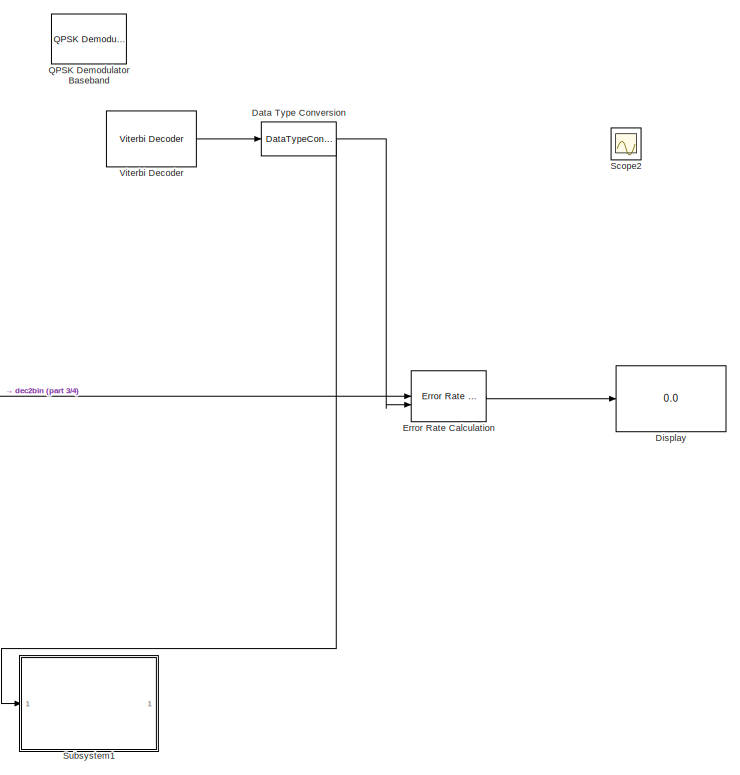
[diagram: root canvas - part 1/4, right side, full height]
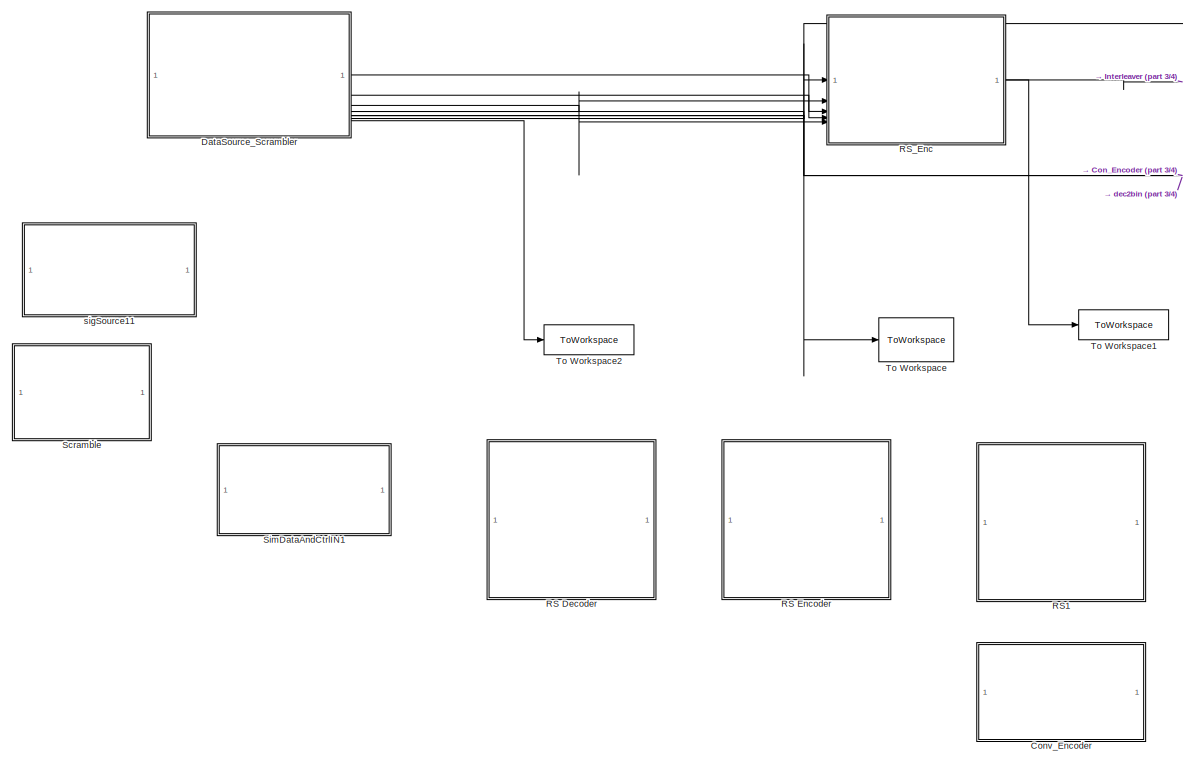
[diagram: root canvas - part 2/4, left side, full height]
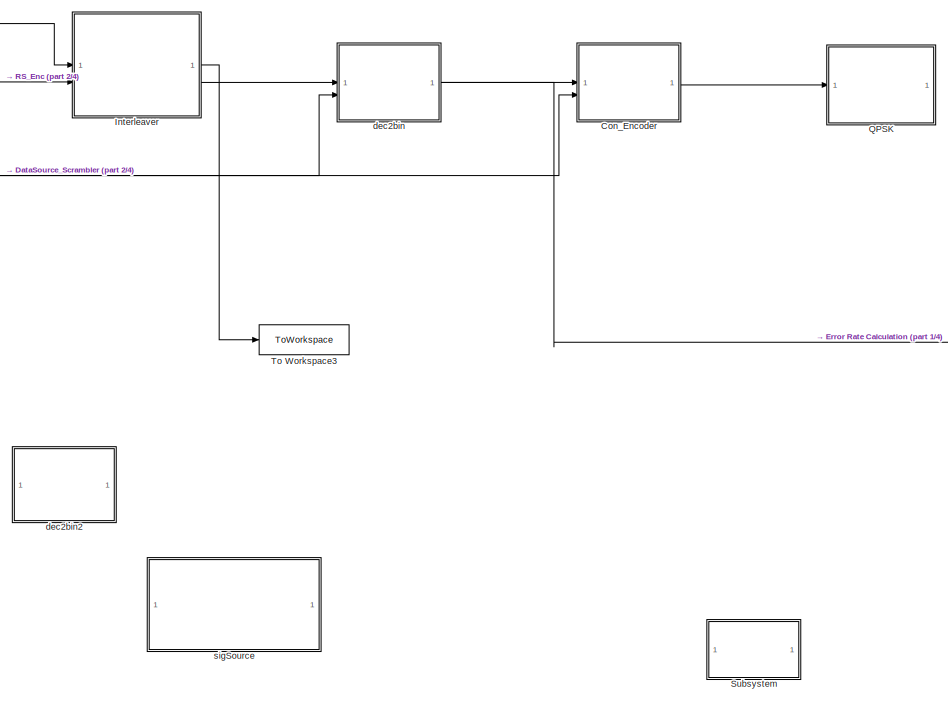
[diagram: root canvas - part 3/4, center side, full height]
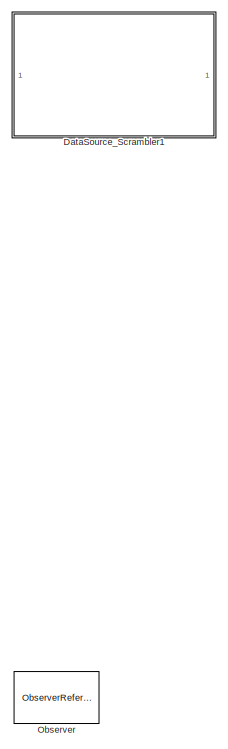
[diagram: root canvas - part 4/4, left side, full height]
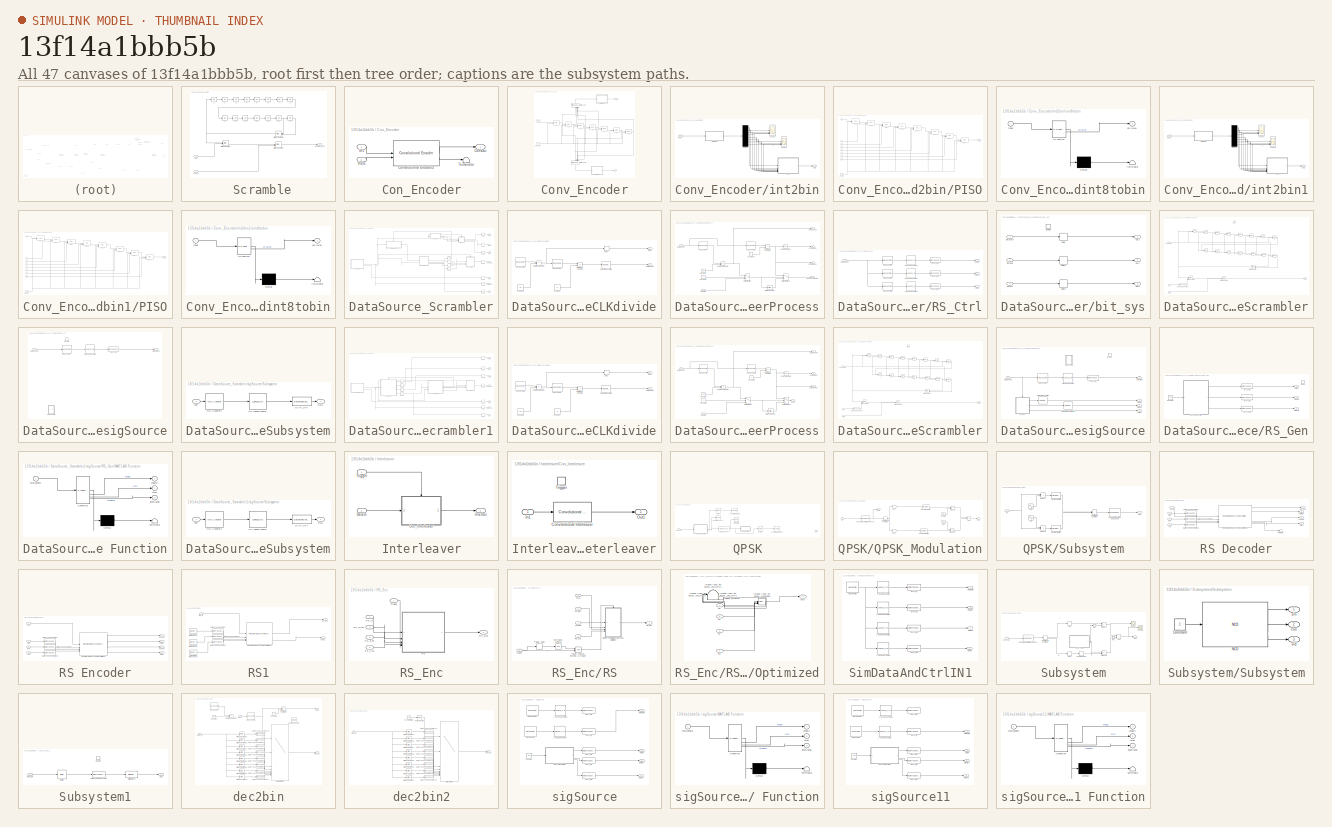
[diagram: thumbnail index - all 47 canvases of the model, root first then tree order]
MODEL slx_13f14a1bbb5b
KIND model
CONFIG AbsTol = auto
CONFIG EnableMultiTasking = off
CONFIG FixedStep = auto
CONFIG MaxStep = auto
CONFIG MinStep = auto
CONFIG RelTol = 1e-3
CONFIG SampleTimeConstraint = Unconstrained
CONFIG SolverName = VariableStepAuto
CONFIG StartTime = 0.0
CONFIG StopTime = 10.0
BLOCK [SubSystem]  Scramble
  Commented = on
BLOCK [Outport]  Scramble/ Scramble_OUT
BLOCK [UnitDelay]  Scramble/1
  HasFrameUpgradeWarning = on
  InitialCondition = iniStates(1)
  SampleTime = 1/fs
BLOCK [UnitDelay]  Scramble/10
  HasFrameUpgradeWarning = on
  InitialCondition = iniStates(10)
  SampleTime = -1
BLOCK [UnitDelay]  Scramble/11
  HasFrameUpgradeWarning = on
  InitialCondition = iniStates(11)
  SampleTime = -1
BLOCK [UnitDelay]  Scramble/12
  HasFrameUpgradeWarning = on
  InitialCondition = iniStates(12)
  SampleTime = -1
BLOCK [UnitDelay]  Scramble/13
  HasFrameUpgradeWarning = on
  InitialCondition = iniStates(13)
  SampleTime = -1
BLOCK [UnitDelay]  Scramble/14
  HasFrameUpgradeWarning = on
  InitialCondition = iniStates(14)
  SampleTime = -1
BLOCK [UnitDelay]  Scramble/15
  HasFrameUpgradeWarning = on
  InitialCondition = iniStates(15)
  SampleTime = -1
BLOCK [UnitDelay]  Scramble/2
  HasFrameUpgradeWarning = on
  InitialCondition = iniStates(2)
  SampleTime = -1
BLOCK [UnitDelay]  Scramble/3
  HasFrameUpgradeWarning = on
  InitialCondition = iniStates(3)
  SampleTime = -1
BLOCK [UnitDelay]  Scramble/4
  HasFrameUpgradeWarning = on
  InitialCondition = iniStates(4)
  SampleTime = -1
BLOCK [UnitDelay]  Scramble/5
  HasFrameUpgradeWarning = on
  InitialCondition = iniStates(5)
  SampleTime = -1
BLOCK [UnitDelay]  Scramble/6
  HasFrameUpgradeWarning = on
  InitialCondition = iniStates(6)
  SampleTime = -1
BLOCK [UnitDelay]  Scramble/7
  HasFrameUpgradeWarning = on
  InitialCondition = iniStates(7)
  SampleTime = -1
BLOCK [UnitDelay]  Scramble/8
  HasFrameUpgradeWarning = on
  InitialCondition = iniStates(8)
  SampleTime = -1
BLOCK [UnitDelay]  Scramble/9
  HasFrameUpgradeWarning = on
  InitialCondition = iniStates(9)
  SampleTime = -1
BLOCK [Reference]  Scramble/Bitwise Operator  REF=simulink/Logic and Bit
Operations/Bitwise
Operator
  LibrarySourceBlock = hdlsllib/Logic and Bit\nOperations/Bitwise\nOperator
  SourceBlock = simulink/Logic and Bit\nOperations/Bitwise\nOperator
  SourceType = Bitwise Operator
BLOCK [Reference]  Scramble/Bitwise Operator1  REF=simulink/Logic and Bit
Operations/Bitwise
Operator
  LibrarySourceBlock = hdlsllib/Logic and Bit\nOperations/Bitwise\nOperator
  SourceBlock = simulink/Logic and Bit\nOperations/Bitwise\nOperator
  SourceType = Bitwise Operator
BLOCK [Reference]  Scramble/Bitwise Operator2  REF=simulink/Logic and Bit
Operations/Bitwise
Operator
  LibrarySourceBlock = hdlsllib/Logic and Bit\nOperations/Bitwise\nOperator
  SourceBlock = simulink/Logic and Bit\nOperations/Bitwise\nOperator
  SourceType = Bitwise Operator
BLOCK [Inport]  Scramble/EN
  OutDataTypeStr = uint8
  Port = 2
BLOCK [Inport]  Scramble/SEQ_IN
BLOCK [SubSystem] Con_Encoder
BLOCK [Outport] Con_Encoder/ConvOut
BLOCK [Reference] Con_Encoder/Convolutional Encoder2  REF=whdledac/Convolutional Encoder
  SourceBlock = whdledac/Convolutional Encoder
  SourceType = Convolutional Encoder
BLOCK [Inport] Con_Encoder/In1
BLOCK [Terminator] Con_Encoder/Terminator
BLOCK [Inport] Con_Encoder/VldIn
  Port = 2
BLOCK [SubSystem] Conv_Encoder
  Commented = on
BLOCK [Delay] Conv_Encoder/0
  DelayLength = 1
  InputPortMap = u0,e6
  ShowEnablePort = on
BLOCK [Delay] Conv_Encoder/1
  DelayLength = 1
  InputPortMap = u0,e6
  ShowEnablePort = on
BLOCK [Delay] Conv_Encoder/2
  DelayLength = 1
  InputPortMap = u0,e6
  ShowEnablePort = on
BLOCK [Delay] Conv_Encoder/3
  DelayLength = 1
  InputPortMap = u0,e6
  ShowEnablePort = on
BLOCK [Delay] Conv_Encoder/4
  DelayLength = 1
  InputPortMap = u0,e6
  ShowEnablePort = on
BLOCK [Delay] Conv_Encoder/5
  DelayLength = 1
  InputPortMap = u0,e6
  ShowEnablePort = on
BLOCK [Delay] Conv_Encoder/6
  DelayLength = 1
  InputPortMap = u0,e6
  ShowEnablePort = on
BLOCK [Reference] Conv_Encoder/Bitwise XOR  REF=simulink/Logic and Bit
Operations/Bitwise
Operator
  LibrarySourceBlock = simulink/Quick Insert/Logic and Bit\nOperations/Bitwise XOR
  NameLocation = right
  SourceBlock = simulink/Logic and Bit\nOperations/Bitwise\nOperator
  SourceType = Bitwise Operator
BLOCK [Reference] Conv_Encoder/Bitwise XOR1  REF=simulink/Logic and Bit
Operations/Bitwise
Operator
  LibrarySourceBlock = simulink/Quick Insert/Logic and Bit\nOperations/Bitwise XOR
  NameLocation = right
  SourceBlock = simulink/Logic and Bit\nOperations/Bitwise\nOperator
  SourceType = Bitwise Operator
BLOCK [Constant] Conv_Encoder/Constant
  OutDataTypeStr = boolean
  SampleTime = 1/rb
BLOCK [Inport] Conv_Encoder/Conv_In
BLOCK [Outport] Conv_Encoder/X
BLOCK [Outport] Conv_Encoder/Y
  Port = 2
BLOCK [SubSystem] Conv_Encoder/int2bin
BLOCK [Demux] Conv_Encoder/int2bin/Demux
  DisplayOption = none
  Outputs = 8
BLOCK [Outport] Conv_Encoder/int2bin/Out1
BLOCK [SubSystem] Conv_Encoder/int2bin/PISO
BLOCK [Inport] Conv_Encoder/int2bin/PISO/1
BLOCK [Inport] Conv_Encoder/int2bin/PISO/2
  Port = 2
BLOCK [Inport] Conv_Encoder/int2bin/PISO/3
  Port = 3
BLOCK [Inport] Conv_Encoder/int2bin/PISO/4
  Port = 4
BLOCK [Inport] Conv_Encoder/int2bin/PISO/5
  Port = 5
BLOCK [Inport] Conv_Encoder/int2bin/PISO/6
  Port = 6
BLOCK [Inport] Conv_Encoder/int2bin/PISO/7
  Port = 7
BLOCK [Inport] Conv_Encoder/int2bin/PISO/8
  Port = 8
BLOCK [Constant] Conv_Encoder/int2bin/PISO/Constant
  OutDataTypeStr = boolean
  SampleTime = 1
BLOCK [Delay] Conv_Encoder/int2bin/PISO/Delay
  DelayLength = 1
  InitialCondition = 0
  InputPortMap = u0,e6
  SampleTime = 1
  ShowEnablePort = on
  UseCircularBuffer = on
  UserDataPersistent = on
BLOCK [Delay] Conv_Encoder/int2bin/PISO/Delay1
  DelayLength = 1
  InitialCondition = 0
  InitialConditionSource = Input port
  InputPortMap = u0,e6,p4
  SampleTime = 1
  ShowEnablePort = on
  UseCircularBuffer = on
  UserDataPersistent = on
BLOCK [Delay] Conv_Encoder/int2bin/PISO/Delay2
  DelayLength = 1
  InitialCondition = 0
  InitialConditionSource = Input port
  InputPortMap = u0,e6,p4
  SampleTime = 1
  ShowEnablePort = on
  UseCircularBuffer = on
  UserDataPersistent = on
BLOCK [Delay] Conv_Encoder/int2bin/PISO/Delay3
  DelayLength = 1
  InitialCondition = 0
  InitialConditionSource = Input port
  InputPortMap = u0,e6,p4
  SampleTime = 1
  ShowEnablePort = on
  UseCircularBuffer = on
  UserDataPersistent = on
BLOCK [Delay] Conv_Encoder/int2bin/PISO/Delay4
  DelayLength = 1
  InitialCondition = 0
  InitialConditionSource = Input port
  InputPortMap = u0,e6,p4
  SampleTime = 1
  ShowEnablePort = on
  UseCircularBuffer = on
  UserDataPersistent = on
BLOCK [Delay] Conv_Encoder/int2bin/PISO/Delay5
  DelayLength = 1
  InitialCondition = 0
  InitialConditionSource = Input port
  InputPortMap = u0,e6,p4
  SampleTime = 1
  ShowEnablePort = on
  UseCircularBuffer = on
  UserDataPersistent = on
BLOCK [Delay] Conv_Encoder/int2bin/PISO/Delay6
  DelayLength = 1
  InitialCondition = 0
  InitialConditionSource = Input port
  InputPortMap = u0,e6,p4
  SampleTime = 1
  ShowEnablePort = on
  UseCircularBuffer = on
  UserDataPersistent = on
BLOCK [Delay] Conv_Encoder/int2bin/PISO/Delay7
  DelayLength = 1
  InitialCondition = 0
  InitialConditionSource = Input port
  InputPortMap = u0,e6,p4
  SampleTime = 1
  ShowEnablePort = on
  UseCircularBuffer = on
  UserDataPersistent = on
BLOCK [Outport] Conv_Encoder/int2bin/PISO/Out1
BLOCK [Scope] Conv_Encoder/int2bin/Scope3
  Floating = off
  NumInputPorts = 4
  ScopeSpecificationString = Simulink.scopes.TimeScopeBlockCfg('CurrentConfiguration', extmgr.ConfigurationSet(extmgr.Configuration('Core','General UI',true),extmgr.Configuration('Core','Source UI',true),extmgr.Configuration('Sources','WiredSimulink',true,'DataLoggingVariableName','ScopeData1'),extmgr.Configuration('Visuals','Time Domain',true,'SerializedDisplays',{struct('MinYLimReal','-0.125','MaxYLimReal','1.125','YLabelRe...<+3326ch>
BLOCK [Scope] Conv_Encoder/int2bin/Scope4
  Floating = off
  NumInputPorts = 4
  ScopeSpecificationString = Simulink.scopes.TimeScopeBlockCfg('CurrentConfiguration', extmgr.ConfigurationSet(extmgr.Configuration('Core','General UI',true),extmgr.Configuration('Core','Source UI',true),extmgr.Configuration('Sources','WiredSimulink',true,'DataLoggingVariableName','ScopeData2'),extmgr.Configuration('Visuals','Time Domain',true,'SerializedDisplays',{struct('MinYLimReal','-0.125','MaxYLimReal','1.125','YLabelRe...<+3326ch>
BLOCK [Inport] Conv_Encoder/int2bin/input
BLOCK [SubSystem] Conv_Encoder/int2bin/uint8tobin
  ErrorFcn = Stateflow.Translate.translate
  PermitHierarchicalResolution = ExplicitOnly
  SFBlockType = MATLAB Function
  TreatAsAtomicUnit = on
BLOCK [Demux] Conv_Encoder/int2bin/uint8tobin/ Demux 
  Outputs = 1
BLOCK [S-Function] Conv_Encoder/int2bin/uint8tobin/ SFunction 
  EnableBusSupport = on
  FunctionName = sf_sfun
  PortCounts = [1 2]
  SFcnIsStateOwnerBlock = off
  SFunctionDeploymentMode = off
  Tag = Stateflow S-Function 2
BLOCK [Terminator] Conv_Encoder/int2bin/uint8tobin/ Terminator 
BLOCK [Outport] Conv_Encoder/int2bin/uint8tobin/bitValue
  VectorParamsAs1DForOutWhenUnconnected = off
BLOCK [Inport] Conv_Encoder/int2bin/uint8tobin/input
BLOCK [SubSystem] Conv_Encoder/int2bin1
BLOCK [Demux] Conv_Encoder/int2bin1/Demux
  DisplayOption = none
  Outputs = 8
BLOCK [Outport] Conv_Encoder/int2bin1/Out1
BLOCK [SubSystem] Conv_Encoder/int2bin1/PISO
BLOCK [Inport] Conv_Encoder/int2bin1/PISO/1
BLOCK [Inport] Conv_Encoder/int2bin1/PISO/2
  Port = 2
BLOCK [Inport] Conv_Encoder/int2bin1/PISO/3
  Port = 3
BLOCK [Inport] Conv_Encoder/int2bin1/PISO/4
  Port = 4
BLOCK [Inport] Conv_Encoder/int2bin1/PISO/5
  Port = 5
BLOCK [Inport] Conv_Encoder/int2bin1/PISO/6
  Port = 6
BLOCK [Inport] Conv_Encoder/int2bin1/PISO/7
  Port = 7
BLOCK [Inport] Conv_Encoder/int2bin1/PISO/8
  Port = 8
BLOCK [Constant] Conv_Encoder/int2bin1/PISO/Constant
  OutDataTypeStr = boolean
  SampleTime = 1
BLOCK [Delay] Conv_Encoder/int2bin1/PISO/Delay
  DelayLength = 1
  InitialCondition = 0
  InputPortMap = u0,e6
  SampleTime = 1
  ShowEnablePort = on
  UseCircularBuffer = on
  UserDataPersistent = on
BLOCK [Delay] Conv_Encoder/int2bin1/PISO/Delay1
  DelayLength = 1
  InitialCondition = 0
  InitialConditionSource = Input port
  InputPortMap = u0,e6,p4
  SampleTime = 1
  ShowEnablePort = on
  UseCircularBuffer = on
  UserDataPersistent = on
BLOCK [Delay] Conv_Encoder/int2bin1/PISO/Delay2
  DelayLength = 1
  InitialCondition = 0
  InitialConditionSource = Input port
  InputPortMap = u0,e6,p4
  SampleTime = 1
  ShowEnablePort = on
  UseCircularBuffer = on
  UserDataPersistent = on
BLOCK [Delay] Conv_Encoder/int2bin1/PISO/Delay3
  DelayLength = 1
  InitialCondition = 0
  InitialConditionSource = Input port
  InputPortMap = u0,e6,p4
  SampleTime = 1
  ShowEnablePort = on
  UseCircularBuffer = on
  UserDataPersistent = on
BLOCK [Delay] Conv_Encoder/int2bin1/PISO/Delay4
  DelayLength = 1
  InitialCondition = 0
  InitialConditionSource = Input port
  InputPortMap = u0,e6,p4
  SampleTime = 1
  ShowEnablePort = on
  UseCircularBuffer = on
  UserDataPersistent = on
BLOCK [Delay] Conv_Encoder/int2bin1/PISO/Delay5
  DelayLength = 1
  InitialCondition = 0
  InitialConditionSource = Input port
  InputPortMap = u0,e6,p4
  SampleTime = 1
  ShowEnablePort = on
  UseCircularBuffer = on
  UserDataPersistent = on
BLOCK [Delay] Conv_Encoder/int2bin1/PISO/Delay6
  DelayLength = 1
  InitialCondition = 0
  InitialConditionSource = Input port
  InputPortMap = u0,e6,p4
  SampleTime = 1
  ShowEnablePort = on
  UseCircularBuffer = on
  UserDataPersistent = on
BLOCK [Delay] Conv_Encoder/int2bin1/PISO/Delay7
  DelayLength = 1
  InitialCondition = 0
  InitialConditionSource = Input port
  InputPortMap = u0,e6,p4
  SampleTime = 1
  ShowEnablePort = on
  UseCircularBuffer = on
  UserDataPersistent = on
BLOCK [Outport] Conv_Encoder/int2bin1/PISO/Out1
BLOCK [Scope] Conv_Encoder/int2bin1/Scope3
  Floating = off
  NumInputPorts = 4
  ScopeSpecificationString = Simulink.scopes.TimeScopeBlockCfg('CurrentConfiguration', extmgr.ConfigurationSet(extmgr.Configuration('Core','General UI',true),extmgr.Configuration('Core','Source UI',true),extmgr.Configuration('Sources','WiredSimulink',true,'DataLoggingVariableName','ScopeData1'),extmgr.Configuration('Visuals','Time Domain',true,'SerializedDisplays',{struct('MinYLimReal','-0.125','MaxYLimReal','1.125','YLabelRe...<+3326ch>
BLOCK [Scope] Conv_Encoder/int2bin1/Scope4
  Floating = off
  NumInputPorts = 4
  ScopeSpecificationString = Simulink.scopes.TimeScopeBlockCfg('CurrentConfiguration', extmgr.ConfigurationSet(extmgr.Configuration('Core','General UI',true),extmgr.Configuration('Core','Source UI',true),extmgr.Configuration('Sources','WiredSimulink',true,'DataLoggingVariableName','ScopeData2'),extmgr.Configuration('Visuals','Time Domain',true,'SerializedDisplays',{struct('MinYLimReal','-0.125','MaxYLimReal','1.125','YLabelRe...<+3326ch>
BLOCK [Inport] Conv_Encoder/int2bin1/input
BLOCK [SubSystem] Conv_Encoder/int2bin1/uint8tobin
  ErrorFcn = Stateflow.Translate.translate
  PermitHierarchicalResolution = ExplicitOnly
  SFBlockType = MATLAB Function
  TreatAsAtomicUnit = on
BLOCK [Demux] Conv_Encoder/int2bin1/uint8tobin/ Demux 
  Outputs = 1
BLOCK [S-Function] Conv_Encoder/int2bin1/uint8tobin/ SFunction 
  EnableBusSupport = on
  FunctionName = sf_sfun
  PortCounts = [1 2]
  SFcnIsStateOwnerBlock = off
  SFunctionDeploymentMode = off
  Tag = Stateflow S-Function 1
BLOCK [Terminator] Conv_Encoder/int2bin1/uint8tobin/ Terminator 
BLOCK [Outport] Conv_Encoder/int2bin1/uint8tobin/bitValue
  VectorParamsAs1DForOutWhenUnconnected = off
BLOCK [Inport] Conv_Encoder/int2bin1/uint8tobin/input
BLOCK [DataTypeConversion] Data Type Conversion
  OutDataTypeStr = boolean
  RndMeth = Floor
  SaturateOnIntegerOverflow = off
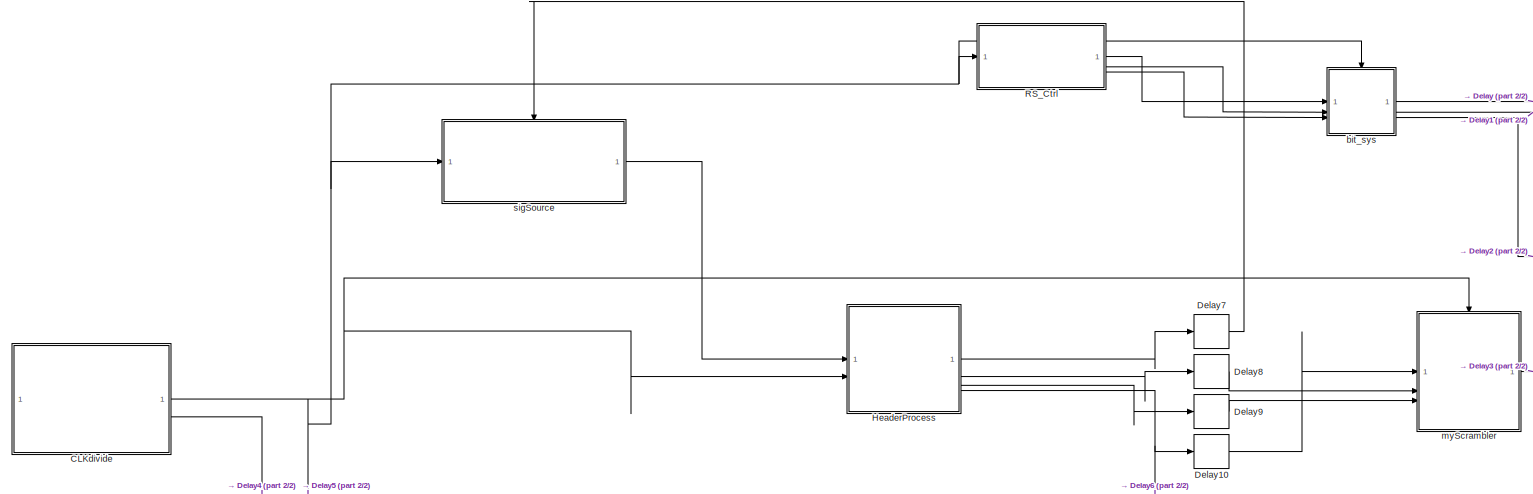
[diagram: DataSource_Scrambler - part 1/2, full width, middle band]
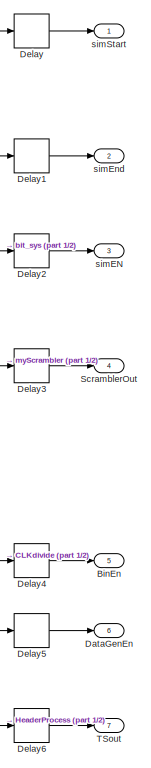
[diagram: DataSource_Scrambler - part 2/2, right side, full height]
BLOCK [SubSystem] DataSource_Scrambler
BLOCK [Outport] DataSource_Scrambler/BinEn
  Port = 5
  VectorParamsAs1DForOutWhenUnconnected = off
BLOCK [SubSystem] DataSource_Scrambler/CLKdivide
BLOCK [Outport] DataSource_Scrambler/CLKdivide/BinEn
  Port = 2
  VectorParamsAs1DForOutWhenUnconnected = off
BLOCK [Constant] DataSource_Scrambler/CLKdivide/Constant
  OutDataTypeStr = uint8
  SampleTime = 1/fs
  Value = 8
  VectorParams1D = off
BLOCK [Constant] DataSource_Scrambler/CLKdivide/Constant1
  OutDataTypeStr = uint8
  SampleTime = 1/fs
  Value = 25
  VectorParams1D = off
BLOCK [Outport] DataSource_Scrambler/CLKdivide/DataGenEn
  VectorParamsAs1DForOutWhenUnconnected = off
BLOCK [Delay] DataSource_Scrambler/CLKdivide/Delay
  DelayLength = 1
  InputPortMap = u0
BLOCK [Reference] DataSource_Scrambler/CLKdivide/Detect Rise Positive  REF=hdlsllib/Logic and Bit
Operations/Detect Rise
Positive
  SourceBlock = hdlsllib/Logic and Bit\nOperations/Detect Rise\nPositive
  SourceType = Detect Rise Positive
BLOCK [Reference] DataSource_Scrambler/CLKdivide/HDL Counter  REF=hdlsllib/Sources/HDL Counter
  SourceBlock = hdlsllib/Sources/HDL Counter
  SourceType = HDL Counter
BLOCK [Reference] DataSource_Scrambler/CLKdivide/HDL Counter2  REF=hdlsllib/Sources/HDL Counter
  SourceBlock = hdlsllib/Sources/HDL Counter
  SourceType = HDL Counter
BLOCK [RelationalOperator] DataSource_Scrambler/CLKdivide/Relational Operator
  InputSameDT = off
  Operator = ==
  OutDataTypeStr = boolean
BLOCK [RelationalOperator] DataSource_Scrambler/CLKdivide/Relational Operator1
  InputSameDT = off
  Operator = ==
  OutDataTypeStr = boolean
BLOCK [Outport] DataSource_Scrambler/DataGenEn
  Port = 6
  VectorParamsAs1DForOutWhenUnconnected = off
BLOCK [Delay] DataSource_Scrambler/Delay
  DelayLength = 1
  InputPortMap = u0
BLOCK [Delay] DataSource_Scrambler/Delay1
  DelayLength = 1
  InputPortMap = u0
BLOCK [Delay] DataSource_Scrambler/Delay10
  DelayLength = 1
  InputPortMap = u0
BLOCK [Delay] DataSource_Scrambler/Delay2
  DelayLength = 1
  InputPortMap = u0
BLOCK [Delay] DataSource_Scrambler/Delay3
  DelayLength = 1
  InputPortMap = u0
BLOCK [Delay] DataSource_Scrambler/Delay4
  DelayLength = 1
  InputPortMap = u0
BLOCK [Delay] DataSource_Scrambler/Delay5
  DelayLength = 1
  InputPortMap = u0
BLOCK [Delay] DataSource_Scrambler/Delay6
  DelayLength = 1
  InputPortMap = u0
BLOCK [Delay] DataSource_Scrambler/Delay7
  DelayLength = 1
  InputPortMap = u0
BLOCK [Delay] DataSource_Scrambler/Delay8
  DelayLength = 1
  InputPortMap = u0
BLOCK [Delay] DataSource_Scrambler/Delay9
  DelayLength = 1
  InputPortMap = u0
BLOCK [SubSystem] DataSource_Scrambler/HeaderProcess
BLOCK [Reference] DataSource_Scrambler/HeaderProcess/Bitwise Operator  REF=simulink/Logic and Bit
Operations/Bitwise
Operator
  SourceBlock = simulink/Logic and Bit\nOperations/Bitwise\nOperator
  SourceType = Bitwise Operator
BLOCK [Constant] DataSource_Scrambler/HeaderProcess/Constant
  OutDataTypeStr = uint8
  SampleTime = 1/fs
  Value = 188
BLOCK [Constant] DataSource_Scrambler/HeaderProcess/Constant1
  OutDataTypeStr = uint8
  Value = 0
BLOCK [Constant] DataSource_Scrambler/HeaderProcess/Constant2
  OutDataTypeStr = uint8
  Value = 0
BLOCK [Outport] DataSource_Scrambler/HeaderProcess/DataGenEN
  VectorParamsAs1DForOutWhenUnconnected = off
BLOCK [Inport] DataSource_Scrambler/HeaderProcess/DataGenEn
  Port = 2
BLOCK [Reference] DataSource_Scrambler/HeaderProcess/HDL Counter  REF=hdlsllib/Sources/HDL Counter
  SourceBlock = hdlsllib/Sources/HDL Counter
  SourceType = HDL Counter
BLOCK [Reference] DataSource_Scrambler/HeaderProcess/HDL Counter1  REF=hdlsllib/Sources/HDL Counter
  SourceBlock = hdlsllib/Sources/HDL Counter
  SourceType = HDL Counter
BLOCK [Logic] DataSource_Scrambler/HeaderProcess/Logical Operator
  AllPortsSameDT = off
  Operator = NOT
  OutDataTypeStr = boolean
BLOCK [MultiPortSwitch] DataSource_Scrambler/HeaderProcess/Multiport Switch
  DataPortIndices = {0,1}
  DataPortOrder = Specify indices
  InputSameDT = off
  OutDataTypeStr = uint8
  SaturateOnIntegerOverflow = off
BLOCK [MultiPortSwitch] DataSource_Scrambler/HeaderProcess/Multiport Switch1
  DataPortIndices = {0,1}
  DataPortOrder = Specify indices
  InputSameDT = off
  OutDataTypeStr = uint8
  SaturateOnIntegerOverflow = off
BLOCK [Outport] DataSource_Scrambler/HeaderProcess/ProcessDataOut
  Port = 4
BLOCK [RelationalOperator] DataSource_Scrambler/HeaderProcess/Relational Operator
  InputSameDT = off
  Operator = <=
  OutDataTypeStr = boolean
BLOCK [RelationalOperator] DataSource_Scrambler/HeaderProcess/Relational Operator1
  InputSameDT = off
  Operator = ==
  OutDataTypeStr = boolean
BLOCK [Outport] DataSource_Scrambler/HeaderProcess/ScrambleEn
  Port = 2
  VectorParamsAs1DForOutWhenUnconnected = off
BLOCK [Outport] DataSource_Scrambler/HeaderProcess/ScrambleRst
  Port = 3
  VectorParamsAs1DForOutWhenUnconnected = off
BLOCK [Inport] DataSource_Scrambler/HeaderProcess/simDataIn
BLOCK [SubSystem] DataSource_Scrambler/RS_Ctrl
BLOCK [Lookup_n-D] DataSource_Scrambler/RS_Ctrl/1-D Lookup Table1
  BreakpointsForDimension1 = [0:204-1]'
  BreakpointsForDimension1FirstPoint = 10
  BreakpointsForDimension1Spacing = 12
  BreakpointsForDimension2FirstPoint = 10
  BreakpointsForDimension2Spacing = 12
  DiagnosticForOutOfRangeInput = Error
  IndexSearchMethod = Evenly spaced points
  InputPortMap = u0
  InternalRulePriority = Speed
  InterpMethod = Flat
  LookupTableObject = ''
  NumberOfTableDimensions = 1
  OutDataTypeStr = uint8
  RndMeth = Simplest
  Table = ctrlIn(:,1)
BLOCK [Lookup_n-D] DataSource_Scrambler/RS_Ctrl/1-D Lookup Table2
  BreakpointsForDimension1 = [0:204-1]'
  BreakpointsForDimension1FirstPoint = 10
  BreakpointsForDimension1Spacing = 12
  BreakpointsForDimension2FirstPoint = 10
  BreakpointsForDimension2Spacing = 12
  DiagnosticForOutOfRangeInput = Error
  IndexSearchMethod = Evenly spaced points
  InputPortMap = u0
  InternalRulePriority = Speed
  InterpMethod = Flat
  LookupTableObject = ''
  NumberOfTableDimensions = 1
  OutDataTypeStr = uint8
  RndMeth = Simplest
  Table = ctrlIn(:,2)
BLOCK [Lookup_n-D] DataSource_Scrambler/RS_Ctrl/1-D Lookup Table3
  BreakpointsForDimension1 = [0:204-1]'
  BreakpointsForDimension1FirstPoint = 10
  BreakpointsForDimension1Spacing = 12
  BreakpointsForDimension2FirstPoint = 10
  BreakpointsForDimension2Spacing = 12
  DiagnosticForOutOfRangeInput = Error
  IndexSearchMethod = Evenly spaced points
  InputPortMap = u0
  InternalRulePriority = Speed
  InterpMethod = Flat
  LookupTableObject = ''
  NumberOfTableDimensions = 1
  OutDataTypeStr = uint8
  RndMeth = Simplest
  Table = ctrlIn(:,3)
BLOCK [DataTypeConversion] DataSource_Scrambler/RS_Ctrl/DATA_IN1
  OutDataTypeStr = boolean
  RndMeth = Floor
  SaturateOnIntegerOverflow = off
BLOCK [DataTypeConversion] DataSource_Scrambler/RS_Ctrl/DATA_IN2
  OutDataTypeStr = boolean
  RndMeth = Floor
  SaturateOnIntegerOverflow = off
BLOCK [DataTypeConversion] DataSource_Scrambler/RS_Ctrl/DATA_IN3
  OutDataTypeStr = boolean
  RndMeth = Floor
  SaturateOnIntegerOverflow = off
BLOCK [Inport] DataSource_Scrambler/RS_Ctrl/DataGenEn
BLOCK [Reference] DataSource_Scrambler/RS_Ctrl/HDL Counter1  REF=hdlsllib/Sources/HDL Counter
  SourceBlock = hdlsllib/Sources/HDL Counter
  SourceType = HDL Counter
BLOCK [Reference] DataSource_Scrambler/RS_Ctrl/HDL Counter2  REF=hdlsllib/Sources/HDL Counter
  SourceBlock = hdlsllib/Sources/HDL Counter
  SourceType = HDL Counter
BLOCK [Reference] DataSource_Scrambler/RS_Ctrl/HDL Counter3  REF=hdlsllib/Sources/HDL Counter
  SourceBlock = hdlsllib/Sources/HDL Counter
  SourceType = HDL Counter
BLOCK [Outport] DataSource_Scrambler/RS_Ctrl/simEN
  InitialOutput = 1
  OutputWhenDisabled = reset
  Port = 3
BLOCK [Outport] DataSource_Scrambler/RS_Ctrl/simEnd
  InitialOutput = 0
  OutputWhenDisabled = reset
  Port = 2
BLOCK [Outport] DataSource_Scrambler/RS_Ctrl/simStart
  InitialOutput = 0
  OutputWhenDisabled = reset
BLOCK [Outport] DataSource_Scrambler/ScramblerOut
  Port = 4
BLOCK [Outport] DataSource_Scrambler/TSout
  Port = 7
  VectorParamsAs1DForOutWhenUnconnected = off
BLOCK [SubSystem] DataSource_Scrambler/bit_sys
BLOCK [Delay] DataSource_Scrambler/bit_sys/Delay
  DelayLength = 0
  InputPortMap = u0
BLOCK [Delay] DataSource_Scrambler/bit_sys/Delay1
  DelayLength = 0
  InputPortMap = u0
BLOCK [Delay] DataSource_Scrambler/bit_sys/Delay2
  DelayLength = 0
  InputPortMap = u0
BLOCK [EnablePort] DataSource_Scrambler/bit_sys/Enable
BLOCK [Outport] DataSource_Scrambler/bit_sys/Out1
  InitialOutput = 0
BLOCK [Outport] DataSource_Scrambler/bit_sys/Out2
  InitialOutput = 0
  Port = 2
BLOCK [Outport] DataSource_Scrambler/bit_sys/Out3
  InitialOutput = 0
  Port = 3
BLOCK [Inport] DataSource_Scrambler/bit_sys/simEN
  Port = 3
BLOCK [Inport] DataSource_Scrambler/bit_sys/simEnd
  Port = 2
BLOCK [Inport] DataSource_Scrambler/bit_sys/simStart
BLOCK [SubSystem] DataSource_Scrambler/myScrambler
BLOCK [Delay] DataSource_Scrambler/myScrambler/1
  DelayLength = 1
  ExternalReset = Level
  InitialCondition = iniStates(1)
  InputPortMap = u0,r5
BLOCK [Delay] DataSource_Scrambler/myScrambler/10
  DelayLength = 1
  ExternalReset = Level
  InitialCondition = iniStates(10)
  InputPortMap = u0,r5
BLOCK [Delay] DataSource_Scrambler/myScrambler/11
  DelayLength = 1
  ExternalReset = Level
  InitialCondition = iniStates(11)
  InputPortMap = u0,r5
BLOCK [Delay] DataSource_Scrambler/myScrambler/12
  DelayLength = 1
  ExternalReset = Level
  InitialCondition = iniStates(12)
  InputPortMap = u0,r5
BLOCK [Delay] DataSource_Scrambler/myScrambler/13
  DelayLength = 1
  ExternalReset = Level
  InitialCondition = iniStates(13)
  InputPortMap = u0,r5
BLOCK [Delay] DataSource_Scrambler/myScrambler/14
  DelayLength = 1
  ExternalReset = Level
  InitialCondition = iniStates(14)
  InputPortMap = u0,r5
BLOCK [Delay] DataSource_Scrambler/myScrambler/15
  DelayLength = 1
  ExternalReset = Level
  InitialCondition = iniStates(15)
  InputPortMap = u0,r5
BLOCK [Delay] DataSource_Scrambler/myScrambler/2
  DelayLength = 1
  ExternalReset = Level
  InitialCondition = iniStates(2)
  InputPortMap = u0,r5
BLOCK [Delay] DataSource_Scrambler/myScrambler/3
  DelayLength = 1
  ExternalReset = Level
  InitialCondition = iniStates(3)
  InputPortMap = u0,r5
BLOCK [Delay] DataSource_Scrambler/myScrambler/4
  DelayLength = 1
  ExternalReset = Level
  InitialCondition = iniStates(4)
  InputPortMap = u0,r5
BLOCK [Delay] DataSource_Scrambler/myScrambler/5
  DelayLength = 1
  ExternalReset = Level
  InitialCondition = iniStates(5)
  InputPortMap = u0,r5
BLOCK [Delay] DataSource_Scrambler/myScrambler/6
  DelayLength = 1
  ExternalReset = Level
  InitialCondition = iniStates(6)
  InputPortMap = u0,r5
BLOCK [Delay] DataSource_Scrambler/myScrambler/7
  DelayLength = 1
  ExternalReset = Level
  InitialCondition = iniStates(7)
  InputPortMap = u0,r5
BLOCK [Delay] DataSource_Scrambler/myScrambler/8
  DelayLength = 1
  ExternalReset = Level
  InitialCondition = iniStates(8)
  InputPortMap = u0,r5
BLOCK [Delay] DataSource_Scrambler/myScrambler/9
  DelayLength = 1
  ExternalReset = Level
  InitialCondition = iniStates(9)
  InputPortMap = u0,r5
BLOCK [Reference] DataSource_Scrambler/myScrambler/Bitwise Operator  REF=simulink/Logic and Bit
Operations/Bitwise
Operator
  SourceBlock = simulink/Logic and Bit\nOperations/Bitwise\nOperator
  SourceType = Bitwise Operator
BLOCK [Reference] DataSource_Scrambler/myScrambler/Bitwise Operator1  REF=simulink/Logic and Bit
Operations/Bitwise
Operator
  SourceBlock = simulink/Logic and Bit\nOperations/Bitwise\nOperator
  SourceType = Bitwise Operator
BLOCK [Reference] DataSource_Scrambler/myScrambler/Bitwise Operator2  REF=simulink/Logic and Bit
Operations/Bitwise
Operator
  SourceBlock = simulink/Logic and Bit\nOperations/Bitwise\nOperator
  SourceType = Bitwise Operator
BLOCK [DataTypeConversion] DataSource_Scrambler/myScrambler/Data Type Conversion
  OutDataTypeStr = uint8
  RndMeth = Floor
  SaturateOnIntegerOverflow = off
BLOCK [Inport] DataSource_Scrambler/myScrambler/DataIn
  OutDataTypeStr = uint8
BLOCK [Inport] DataSource_Scrambler/myScrambler/EN
  OutDataTypeStr = boolean
  Port = 2
BLOCK [Outport] DataSource_Scrambler/myScrambler/Out1
  InitialOutput = 0
BLOCK [Inport] DataSource_Scrambler/myScrambler/RST_IniState
  OutDataTypeStr = boolean
  Port = 3
BLOCK [TriggerPort] DataSource_Scrambler/myScrambler/Trigger
  PortDimensions = 1
  StatesWhenEnabling = held
  VariantControl = Variant
BLOCK [SubSystem] DataSource_Scrambler/sigSource
BLOCK [Lookup_n-D] DataSource_Scrambler/sigSource/1-D Lookup Table
  BreakpointsForDimension1 = [0:18800-1]'
  BreakpointsForDimension1FirstPoint = 10
  BreakpointsForDimension1Spacing = 12
  BreakpointsForDimension2FirstPoint = 10
  BreakpointsForDimension2Spacing = 12
  DiagnosticForOutOfRangeInput = Error
  IndexSearchMethod = Evenly spaced points
  InputPortMap = u0
  InternalRulePriority = Speed
  InterpMethod = Flat
  LookupTableObject = ''
  NumberOfTableDimensions = 1
  OutDataTypeStr = uint8
  RndMeth = Simplest
  Table = sourceData
BLOCK [DataTypeConversion] DataSource_Scrambler/sigSource/DATA_IN
  OutDataTypeStr = inDataType
  RndMeth = Floor
  SaturateOnIntegerOverflow = off
BLOCK [Inport] DataSource_Scrambler/sigSource/DataGenEn
BLOCK [EnablePort] DataSource_Scrambler/sigSource/Enable
BLOCK [Reference] DataSource_Scrambler/sigSource/HDL Counter  REF=hdlsllib/Sources/HDL Counter
  SourceBlock = hdlsllib/Sources/HDL Counter
  SourceType = HDL Counter
BLOCK [SubSystem] DataSource_Scrambler/sigSource/Subsystem
  Commented = on
BLOCK [Lookup_n-D] DataSource_Scrambler/sigSource/Subsystem/1-D Lookup Table1
  BreakpointsForDimension1 = [0:1020-1]'
  BreakpointsForDimension1FirstPoint = 10
  BreakpointsForDimension1Spacing = 12
  BreakpointsForDimension2FirstPoint = 10
  BreakpointsForDimension2Spacing = 12
  DiagnosticForOutOfRangeInput = Error
  IndexSearchMethod = Evenly spaced points
  InputPortMap = u0
  InternalRulePriority = Speed
  InterpMethod = Flat
  LookupTableObject = ''
  NumberOfTableDimensions = 1
  OutDataTypeStr = uint8
  RndMeth = Simplest
  Table = oneData
BLOCK [DataTypeConversion] DataSource_Scrambler/sigSource/Subsystem/DATA_IN4
  OutDataTypeStr = inDataType
  RndMeth = Floor
  SaturateOnIntegerOverflow = off
BLOCK [Reference] DataSource_Scrambler/sigSource/Subsystem/HDL Counter1  REF=hdlsllib/Sources/HDL Counter
  SourceBlock = hdlsllib/Sources/HDL Counter
  SourceType = HDL Counter
BLOCK [Outport] DataSource_Scrambler/sigSource/Subsystem/Out1
BLOCK [Inport] DataSource_Scrambler/sigSource/Subsystem/enb
BLOCK [Outport] DataSource_Scrambler/sigSource/simDataOut
  InitialOutput = 0
BLOCK [Outport] DataSource_Scrambler/simEN
  Port = 3
BLOCK [Outport] DataSource_Scrambler/simEnd
  Port = 2
BLOCK [Outport] DataSource_Scrambler/simStart
BLOCK [SubSystem] DataSource_Scrambler1
  Commented = on
BLOCK [Outport] DataSource_Scrambler1/BinEn
  Port = 5
  VectorParamsAs1DForOutWhenUnconnected = off
BLOCK [SubSystem] DataSource_Scrambler1/CLKdivide
BLOCK [Outport] DataSource_Scrambler1/CLKdivide/BinEn
  Port = 2
  VectorParamsAs1DForOutWhenUnconnected = off
BLOCK [Constant] DataSource_Scrambler1/CLKdivide/Constant
  OutDataTypeStr = uint8
  SampleTime = 1/fs
  Value = 8
  VectorParams1D = off
BLOCK [Constant] DataSource_Scrambler1/CLKdivide/Constant1
  OutDataTypeStr = uint8
  SampleTime = 1/fs
  Value = 25
  VectorParams1D = off
BLOCK [Outport] DataSource_Scrambler1/CLKdivide/DataGenEn
  VectorParamsAs1DForOutWhenUnconnected = off
BLOCK [Delay] DataSource_Scrambler1/CLKdivide/Delay
  DelayLength = 1
  InputPortMap = u0
BLOCK [Reference] DataSource_Scrambler1/CLKdivide/Detect Rise Positive  REF=hdlsllib/Logic and Bit
Operations/Detect Rise
Positive
  SourceBlock = hdlsllib/Logic and Bit\nOperations/Detect Rise\nPositive
  SourceType = Detect Rise Positive
BLOCK [Reference] DataSource_Scrambler1/CLKdivide/HDL Counter  REF=hdlsllib/Sources/HDL Counter
  SourceBlock = hdlsllib/Sources/HDL Counter
  SourceType = HDL Counter
BLOCK [Reference] DataSource_Scrambler1/CLKdivide/HDL Counter2  REF=hdlsllib/Sources/HDL Counter
  SourceBlock = hdlsllib/Sources/HDL Counter
  SourceType = HDL Counter
BLOCK [RelationalOperator] DataSource_Scrambler1/CLKdivide/Relational Operator
  InputSameDT = off
  Operator = ==
  OutDataTypeStr = boolean
BLOCK [RelationalOperator] DataSource_Scrambler1/CLKdivide/Relational Operator1
  InputSameDT = off
  Operator = ==
  OutDataTypeStr = boolean
BLOCK [Outport] DataSource_Scrambler1/DataGenEn
  Port = 6
  VectorParamsAs1DForOutWhenUnconnected = off
BLOCK [Delay] DataSource_Scrambler1/Delay
  DelayLength = 1
  InputPortMap = u0
BLOCK [Delay] DataSource_Scrambler1/Delay1
  DelayLength = 1
  InputPortMap = u0
BLOCK [Delay] DataSource_Scrambler1/Delay10
  DelayLength = 1
  InputPortMap = u0
BLOCK [Delay] DataSource_Scrambler1/Delay2
  DelayLength = 1
  InputPortMap = u0
BLOCK [Delay] DataSource_Scrambler1/Delay3
  DelayLength = 1
  InputPortMap = u0
BLOCK [Delay] DataSource_Scrambler1/Delay4
  DelayLength = 1
  InputPortMap = u0
BLOCK [Delay] DataSource_Scrambler1/Delay5
  DelayLength = 1
  InputPortMap = u0
BLOCK [Delay] DataSource_Scrambler1/Delay6
  DelayLength = 1
  InputPortMap = u0
BLOCK [Delay] DataSource_Scrambler1/Delay7
  DelayLength = 1
  InputPortMap = u0
BLOCK [Delay] DataSource_Scrambler1/Delay8
  DelayLength = 1
  InputPortMap = u0
BLOCK [Delay] DataSource_Scrambler1/Delay9
  DelayLength = 1
  InputPortMap = u0
BLOCK [SubSystem] DataSource_Scrambler1/HeaderProcess
BLOCK [Reference] DataSource_Scrambler1/HeaderProcess/Bitwise Operator  REF=simulink/Logic and Bit
Operations/Bitwise
Operator
  SourceBlock = simulink/Logic and Bit\nOperations/Bitwise\nOperator
  SourceType = Bitwise Operator
BLOCK [Constant] DataSource_Scrambler1/HeaderProcess/Constant
  OutDataTypeStr = uint8
  SampleTime = 1/fs
  Value = 188
BLOCK [Constant] DataSource_Scrambler1/HeaderProcess/Constant1
  OutDataTypeStr = uint8
  Value = 0
BLOCK [Constant] DataSource_Scrambler1/HeaderProcess/Constant2
  OutDataTypeStr = uint8
  Value = 0
BLOCK [Outport] DataSource_Scrambler1/HeaderProcess/DataGenEN
  VectorParamsAs1DForOutWhenUnconnected = off
BLOCK [Inport] DataSource_Scrambler1/HeaderProcess/DataGenEn
  Port = 2
BLOCK [Outport] DataSource_Scrambler1/HeaderProcess/DataIn
  Port = 4
BLOCK [Reference] DataSource_Scrambler1/HeaderProcess/HDL Counter  REF=hdlsllib/Sources/HDL Counter
  SourceBlock = hdlsllib/Sources/HDL Counter
  SourceType = HDL Counter
BLOCK [Reference] DataSource_Scrambler1/HeaderProcess/HDL Counter1  REF=hdlsllib/Sources/HDL Counter
  SourceBlock = hdlsllib/Sources/HDL Counter
  SourceType = HDL Counter
BLOCK [Logic] DataSource_Scrambler1/HeaderProcess/Logical Operator
  AllPortsSameDT = off
  Operator = NOT
  OutDataTypeStr = boolean
BLOCK [MultiPortSwitch] DataSource_Scrambler1/HeaderProcess/Multiport Switch
  DataPortIndices = {0,1}
  DataPortOrder = Specify indices
  InputSameDT = off
  OutDataTypeStr = uint8
  SaturateOnIntegerOverflow = off
BLOCK [MultiPortSwitch] DataSource_Scrambler1/HeaderProcess/Multiport Switch1
  DataPortIndices = {0,1}
  DataPortOrder = Specify indices
  InputSameDT = off
  OutDataTypeStr = uint8
  SaturateOnIntegerOverflow = off
BLOCK [RelationalOperator] DataSource_Scrambler1/HeaderProcess/Relational Operator
  InputSameDT = off
  Operator = <=
  OutDataTypeStr = boolean
BLOCK [RelationalOperator] DataSource_Scrambler1/HeaderProcess/Relational Operator1
  InputSameDT = off
  Operator = ==
  OutDataTypeStr = boolean
BLOCK [Outport] DataSource_Scrambler1/HeaderProcess/ScrambleEn
  Port = 2
  VectorParamsAs1DForOutWhenUnconnected = off
BLOCK [Outport] DataSource_Scrambler1/HeaderProcess/ScrambleRst
  Port = 3
  VectorParamsAs1DForOutWhenUnconnected = off
BLOCK [Inport] DataSource_Scrambler1/HeaderProcess/simDataIn
BLOCK [Outport] DataSource_Scrambler1/ScramblerOut
  Port = 4
BLOCK [Outport] DataSource_Scrambler1/TSout
  Port = 7
  VectorParamsAs1DForOutWhenUnconnected = off
BLOCK [SubSystem] DataSource_Scrambler1/myScrambler
BLOCK [Delay] DataSource_Scrambler1/myScrambler/1
  DelayLength = 1
  ExternalReset = Level
  InitialCondition = iniStates(1)
  InputPortMap = u0,r5
BLOCK [Delay] DataSource_Scrambler1/myScrambler/10
  DelayLength = 1
  ExternalReset = Level
  InitialCondition = iniStates(10)
  InputPortMap = u0,r5
BLOCK [Delay] DataSource_Scrambler1/myScrambler/11
  DelayLength = 1
  ExternalReset = Level
  InitialCondition = iniStates(11)
  InputPortMap = u0,r5
BLOCK [Delay] DataSource_Scrambler1/myScrambler/12
  DelayLength = 1
  ExternalReset = Level
  InitialCondition = iniStates(12)
  InputPortMap = u0,r5
BLOCK [Delay] DataSource_Scrambler1/myScrambler/13
  DelayLength = 1
  ExternalReset = Level
  InitialCondition = iniStates(13)
  InputPortMap = u0,r5
BLOCK [Delay] DataSource_Scrambler1/myScrambler/14
  DelayLength = 1
  ExternalReset = Level
  InitialCondition = iniStates(14)
  InputPortMap = u0,r5
BLOCK [Delay] DataSource_Scrambler1/myScrambler/15
  DelayLength = 1
  ExternalReset = Level
  InitialCondition = iniStates(15)
  InputPortMap = u0,r5
BLOCK [Delay] DataSource_Scrambler1/myScrambler/2
  DelayLength = 1
  ExternalReset = Level
  InitialCondition = iniStates(2)
  InputPortMap = u0,r5
BLOCK [Delay] DataSource_Scrambler1/myScrambler/3
  DelayLength = 1
  ExternalReset = Level
  InitialCondition = iniStates(3)
  InputPortMap = u0,r5
BLOCK [Delay] DataSource_Scrambler1/myScrambler/4
  DelayLength = 1
  ExternalReset = Level
  InitialCondition = iniStates(4)
  InputPortMap = u0,r5
BLOCK [Delay] DataSource_Scrambler1/myScrambler/5
  DelayLength = 1
  ExternalReset = Level
  InitialCondition = iniStates(5)
  InputPortMap = u0,r5
BLOCK [Delay] DataSource_Scrambler1/myScrambler/6
  DelayLength = 1
  ExternalReset = Level
  InitialCondition = iniStates(6)
  InputPortMap = u0,r5
BLOCK [Delay] DataSource_Scrambler1/myScrambler/7
  DelayLength = 1
  ExternalReset = Level
  InitialCondition = iniStates(7)
  InputPortMap = u0,r5
BLOCK [Delay] DataSource_Scrambler1/myScrambler/8
  DelayLength = 1
  ExternalReset = Level
  InitialCondition = iniStates(8)
  InputPortMap = u0,r5
BLOCK [Delay] DataSource_Scrambler1/myScrambler/9
  DelayLength = 1
  ExternalReset = Level
  InitialCondition = iniStates(9)
  InputPortMap = u0,r5
BLOCK [Reference] DataSource_Scrambler1/myScrambler/Bitwise Operator  REF=simulink/Logic and Bit
Operations/Bitwise
Operator
  SourceBlock = simulink/Logic and Bit\nOperations/Bitwise\nOperator
  SourceType = Bitwise Operator
BLOCK [Reference] DataSource_Scrambler1/myScrambler/Bitwise Operator1  REF=simulink/Logic and Bit
Operations/Bitwise
Operator
  SourceBlock = simulink/Logic and Bit\nOperations/Bitwise\nOperator
  SourceType = Bitwise Operator
BLOCK [Reference] DataSource_Scrambler1/myScrambler/Bitwise Operator2  REF=simulink/Logic and Bit
Operations/Bitwise
Operator
  SourceBlock = simulink/Logic and Bit\nOperations/Bitwise\nOperator
  SourceType = Bitwise Operator
BLOCK [DataTypeConversion] DataSource_Scrambler1/myScrambler/Data Type Conversion
  OutDataTypeStr = uint8
  RndMeth = Floor
  SaturateOnIntegerOverflow = off
BLOCK [Inport] DataSource_Scrambler1/myScrambler/DataIn
  OutDataTypeStr = uint8
BLOCK [Inport] DataSource_Scrambler1/myScrambler/EN
  OutDataTypeStr = boolean
  Port = 2
BLOCK [Outport] DataSource_Scrambler1/myScrambler/Out1
  InitialOutput = 0
BLOCK [Inport] DataSource_Scrambler1/myScrambler/RST_IniState
  OutDataTypeStr = boolean
  Port = 3
BLOCK [TriggerPort] DataSource_Scrambler1/myScrambler/Trigger
  PortDimensions = 1
  StatesWhenEnabling = held
  VariantControl = Variant
BLOCK [SubSystem] DataSource_Scrambler1/sigSource
BLOCK [Lookup_n-D] DataSource_Scrambler1/sigSource/1-D Lookup Table
  BreakpointsForDimension1 = [0:18800-1]'
  BreakpointsForDimension1FirstPoint = 10
  BreakpointsForDimension1Spacing = 12
  BreakpointsForDimension2FirstPoint = 10
  BreakpointsForDimension2Spacing = 12
  DiagnosticForOutOfRangeInput = Error
  IndexSearchMethod = Evenly spaced points
  InputPortMap = u0
  InternalRulePriority = Speed
  InterpMethod = Flat
  LookupTableObject = ''
  NumberOfTableDimensions = 1
  OutDataTypeStr = uint8
  RndMeth = Simplest
  Table = sourceData
BLOCK [DataTypeConversion] DataSource_Scrambler1/sigSource/DATA_IN
  OutDataTypeStr = inDataType
  RndMeth = Floor
  SaturateOnIntegerOverflow = off
BLOCK [Inport] DataSource_Scrambler1/sigSource/DataGenEn
BLOCK [Reference] DataSource_Scrambler1/sigSource/Detect Rise Positive  REF=hdlsllib/Logic and Bit
Operations/Detect Rise
Positive
  SourceBlock = hdlsllib/Logic and Bit\nOperations/Detect Rise\nPositive
  SourceType = Detect Rise Positive
BLOCK [Reference] DataSource_Scrambler1/sigSource/Detect Rise Positive1  REF=hdlsllib/Logic and Bit
Operations/Detect Rise
Positive
  SourceBlock = hdlsllib/Logic and Bit\nOperations/Detect Rise\nPositive
  SourceType = Detect Rise Positive
BLOCK [EnablePort] DataSource_Scrambler1/sigSource/Enable
BLOCK [Reference] DataSource_Scrambler1/sigSource/HDL Counter  REF=hdlsllib/Sources/HDL Counter
  SourceBlock = hdlsllib/Sources/HDL Counter
  SourceType = HDL Counter
BLOCK [SubSystem] DataSource_Scrambler1/sigSource/RS_Gen
BLOCK [Constant] DataSource_Scrambler1/sigSource/RS_Gen/Constant
  OutDataTypeStr = uint16
  SampleTime = -1
  Value = 204
BLOCK [DataTypeConversion] DataSource_Scrambler1/sigSource/RS_Gen/DATA_IN1
  OutDataTypeStr = boolean
  RndMeth = Floor
  SaturateOnIntegerOverflow = off
BLOCK [DataTypeConversion] DataSource_Scrambler1/sigSource/RS_Gen/DATA_IN2
  OutDataTypeStr = boolean
  RndMeth = Floor
  SaturateOnIntegerOverflow = off
BLOCK [DataTypeConversion] DataSource_Scrambler1/sigSource/RS_Gen/DATA_IN3
  OutDataTypeStr = boolean
  RndMeth = Floor
  SaturateOnIntegerOverflow = off
BLOCK [SubSystem] DataSource_Scrambler1/sigSource/RS_Gen/MATLAB Function
  ErrorFcn = Stateflow.Translate.translate
  PermitHierarchicalResolution = ExplicitOnly
  SFBlockType = MATLAB Function
  TreatAsAtomicUnit = on
BLOCK [Demux] DataSource_Scrambler1/sigSource/RS_Gen/MATLAB Function/ Demux 
  Outputs = 1
BLOCK [S-Function] DataSource_Scrambler1/sigSource/RS_Gen/MATLAB Function/ SFunction 
  EnableBusSupport = on
  FunctionName = sf_sfun
  PortCounts = [1 4]
  SFcnIsStateOwnerBlock = off
  SFunctionDeploymentMode = off
  Tag = Stateflow S-Function 6
BLOCK [Terminator] DataSource_Scrambler1/sigSource/RS_Gen/MATLAB Function/ Terminator 
BLOCK [Outport] DataSource_Scrambler1/sigSource/RS_Gen/MATLAB Function/enable
  VectorParamsAs1DForOutWhenUnconnected = off
BLOCK [Outport] DataSource_Scrambler1/sigSource/RS_Gen/MATLAB Function/endSignal
  Port = 3
BLOCK [Outport] DataSource_Scrambler1/sigSource/RS_Gen/MATLAB Function/start
  Port = 2
BLOCK [Inport] DataSource_Scrambler1/sigSource/RS_Gen/MATLAB Function/totalLength
BLOCK [TriggerPort] DataSource_Scrambler1/sigSource/RS_Gen/Trigger
  PortDimensions = 1
  StatesWhenEnabling = held
  VariantControl = (inherit)
BLOCK [Outport] DataSource_Scrambler1/sigSource/RS_Gen/simEN
  InitialOutput = 0
  Port = 3
BLOCK [Outport] DataSource_Scrambler1/sigSource/RS_Gen/simEnd
  InitialOutput = 0
  Port = 2
BLOCK [Outport] DataSource_Scrambler1/sigSource/RS_Gen/simStart
  InitialOutput = 0
BLOCK [SubSystem] DataSource_Scrambler1/sigSource/Subsystem
  Commented = on
BLOCK [Lookup_n-D] DataSource_Scrambler1/sigSource/Subsystem/1-D Lookup Table1
  BreakpointsForDimension1 = [0:1020-1]'
  BreakpointsForDimension1FirstPoint = 10
  BreakpointsForDimension1Spacing = 12
  BreakpointsForDimension2FirstPoint = 10
  BreakpointsForDimension2Spacing = 12
  DiagnosticForOutOfRangeInput = Error
  IndexSearchMethod = Evenly spaced points
  InputPortMap = u0
  InternalRulePriority = Speed
  InterpMethod = Flat
  LookupTableObject = ''
  NumberOfTableDimensions = 1
  OutDataTypeStr = uint8
  RndMeth = Simplest
  Table = oneData
BLOCK [DataTypeConversion] DataSource_Scrambler1/sigSource/Subsystem/DATA_IN4
  OutDataTypeStr = inDataType
  RndMeth = Floor
  SaturateOnIntegerOverflow = off
BLOCK [Reference] DataSource_Scrambler1/sigSource/Subsystem/HDL Counter1  REF=hdlsllib/Sources/HDL Counter
  SourceBlock = hdlsllib/Sources/HDL Counter
  SourceType = HDL Counter
BLOCK [Outport] DataSource_Scrambler1/sigSource/Subsystem/Out1
BLOCK [Inport] DataSource_Scrambler1/sigSource/Subsystem/enb
BLOCK [Outport] DataSource_Scrambler1/sigSource/simDataIn
  InitialOutput = 0
  Port = 4
BLOCK [Outport] DataSource_Scrambler1/sigSource/simEN
  InitialOutput = 0
  Port = 3
BLOCK [Outport] DataSource_Scrambler1/sigSource/simEnd
  InitialOutput = 0
  Port = 2
BLOCK [Outport] DataSource_Scrambler1/sigSource/simStart
  InitialOutput = 0
BLOCK [Outport] DataSource_Scrambler1/simEN
  Port = 3
BLOCK [Outport] DataSource_Scrambler1/simEnd
  Port = 2
BLOCK [Outport] DataSource_Scrambler1/simStart
BLOCK [Display] Display
  Decimation = 1
BLOCK [Reference] Error Rate Calculation  REF=commsink2/Error Rate
Calculation
  LibrarySourceBlock = commhdlsink/Error Rate\nCalculation
  SourceBlock = commsink2/Error Rate\nCalculation
  SourceType = Error Rate Calculation
BLOCK [SubSystem] Interleaver
BLOCK [SubSystem] Interleaver/Con_Interleaver
BLOCK [Reference] Interleaver/Con_Interleaver/Convolutional Interleaver  REF=commcnvintrlv2/Convolutional
Interleaver
  LibrarySourceBlock = commhdlinterleave/Convolutional\nInterleaver
  SourceBlock = commcnvintrlv2/Convolutional\nInterleaver
  SourceType = Convolutional Interleaver
BLOCK [Inport] Interleaver/Con_Interleaver/In1
BLOCK [Outport] Interleaver/Con_Interleaver/Out1
  InitialOutput = 0
BLOCK [TriggerPort] Interleaver/Con_Interleaver/Trigger
  PortDimensions = 1
  StatesWhenEnabling = held
  VariantControl = Variant
BLOCK [Inport] Interleaver/DataIn
  Port = 2
BLOCK [Outport] Interleaver/InterOut
BLOCK [Inport] Interleaver/Trigger
BLOCK [ObserverReference] Observer
  ObserverModelName = DVBS_Observer1
BLOCK [SubSystem] QPSK
  Commented = on
BLOCK [Reference] QPSK Demodulator Baseband  REF=commdigbbndpm3/QPSK
Demodulator
Baseband
  LibrarySourceBlock = commhdldigbbndpm/QPSK\nDemodulator\nBaseband
  SourceBlock = commdigbbndpm3/QPSK\nDemodulator\nBaseband
  SourceType = QPSK Demodulator Baseband
BLOCK [Reference] QPSK/AWGN Channel  REF=commchan3/AWGN
Channel
  SourceBlock = commchan3/AWGN\nChannel
  SourceType = AWGN Channel
BLOCK [Buffer] QPSK/Buffer
  N = 208*8
  OutputFrames = off
BLOCK [Buffer] QPSK/Buffer1
  N = 208*8
  OutputFrames = off
BLOCK [ConstellationDiagram] QPSK/Constellation Diagram
  GraphicalSettings = {"GraphicalSettings":{"Style":{}}}
  ScopeFrameLocation = window
  WasSavedAsWebScope = on
  WindowPosition = [382.000000,84.000000,600.000000,600.000000,]
BLOCK [ConstellationDiagram] QPSK/Constellation Diagram1
  GraphicalSettings = {"GraphicalSettings":{"Style":{}}}
  ScopeFrameLocation = window
  WasSavedAsWebScope = on
  WindowPosition = [382.000000,84.000000,600.000000,600.000000,]
BLOCK [Inport] QPSK/ConvOut
BLOCK [Outport] QPSK/Out1
BLOCK [SubSystem] QPSK/QPSK_Modulation
BLOCK [Sum] QPSK/QPSK_Modulation/Add
  IconShape = rectangular
  Inputs = +-
BLOCK [ComplexToRealImag] QPSK/QPSK_Modulation/Complex to Real-Imag
BLOCK [Sin] QPSK/QPSK_Modulation/Cosine
  Frequency = fc*2*pi
  Phase = pi/2
  SampleTime = 1/fs
BLOCK [DiscreteFir] QPSK/QPSK_Modulation/Discrete FIR Filter
  Coefficients = Rcos
  InputPortMap = u0
  OutputPortMap = o0
BLOCK [DiscreteFir] QPSK/QPSK_Modulation/Discrete FIR Filter1
  Coefficients = Rcos
  InputPortMap = u0
  OutputPortMap = o0
BLOCK [Inport] QPSK/QPSK_Modulation/In1
BLOCK [Outport] QPSK/QPSK_Modulation/Out1
BLOCK [Outport] QPSK/QPSK_Modulation/Out2
  Port = 2
  VectorParamsAs1DForOutWhenUnconnected = off
BLOCK [Product] QPSK/QPSK_Modulation/Product
BLOCK [Product] QPSK/QPSK_Modulation/Product1
BLOCK [Reference] QPSK/QPSK_Modulation/QPSK Modulator Baseband  REF=commdigbbndpm3/QPSK
Modulator
Baseband
  LibrarySourceBlock = commhdldigbbndpm/QPSK\nModulator\nBaseband
  SourceBlock = commdigbbndpm3/QPSK\nModulator\nBaseband
  SourceType = QPSK Modulator Baseband
BLOCK [Signum] QPSK/QPSK_Modulation/Sign
  Commented = through
BLOCK [Signum] QPSK/QPSK_Modulation/Sign1
  Commented = through
BLOCK [Sin] QPSK/QPSK_Modulation/Sine
  Frequency = fc*2*pi
  SampleTime = 1/fs
BLOCK [SpectrumAnalyzer] QPSK/Spectrum Analyzer
  GraphicalSettings = {"GraphicalSettings":{"Style":{"BackgroundColor":[0.12941176470588237,0.12941176470588237,0.12941176470588237],"AxesColor":[0.07058823529411765,0.07058823529411765,0.07058823529411765],"LabelsColor":[0.8509803921568627,0.8509803921568627,0.8509803921568627],"PreserveColors":false,"Visible":[true],"LineStyle":["-"],"LineColor":[[1,1,0.06666666666666667]],"LineWidth":[1.5],"Marker":["none"],"FontSiz...<+929ch>
  ScopeFrameLocation = window
  Span = 200000000
  StartFrequency = -100000000
  StopFrequency = 100000000
  WasSavedAsWebScope = on
  WindowPosition = [560.000000,290.000000,800.000000,500.000000,]
  YLimits = [-148.99869569,52.12402629]
BLOCK [SpectrumAnalyzer] QPSK/Spectrum Analyzer1
  GraphicalSettings = {"GraphicalSettings":{"Style":{"BackgroundColor":[0.12941176470588237,0.12941176470588237,0.12941176470588237],"AxesColor":[0.07058823529411765,0.07058823529411765,0.07058823529411765],"LabelsColor":[0.8509803921568627,0.8509803921568627,0.8509803921568627],"PreserveColors":false,"Visible":[true],"LineStyle":["-"],"LineColor":[[1,1,0.06666666666666667]],"LineWidth":[1.5],"Marker":["none"],"FontSiz...<+929ch>
  ScopeFrameLocation = window
  Span = 200000000
  StartFrequency = -100000000
  StopFrequency = 100000000
  WasSavedAsWebScope = on
  WindowPosition = [560.000000,290.000000,800.000000,500.000000,]
  YLimits = [-18.85034536,37.65024971]
BLOCK [SubSystem] QPSK/Subsystem
BLOCK [Sin] QPSK/Subsystem/Cos
  Frequency = fc*2*pi
  Phase = pi/2
  SampleTime = 1/fs
BLOCK [DiscreteFir] QPSK/Subsystem/Discrete FIR Filter
  Coefficients = Rcos
  InputPortMap = u0
  OutputPortMap = o0
BLOCK [DiscreteFir] QPSK/Subsystem/Discrete FIR Filter1
  Coefficients = Rcos
  InputPortMap = u0
  OutputPortMap = o0
BLOCK [Inport] QPSK/Subsystem/In1
BLOCK [Outport] QPSK/Subsystem/Out1
BLOCK [Product] QPSK/Subsystem/Product
BLOCK [Product] QPSK/Subsystem/Product1
BLOCK [Reference] QPSK/Subsystem/QPSK Demodulator Baseband  REF=commdigbbndpm3/QPSK
Demodulator
Baseband
  LibrarySourceBlock = commhdldigbbndpm/QPSK\nDemodulator\nBaseband
  SourceBlock = commdigbbndpm3/QPSK\nDemodulator\nBaseband
  SourceType = QPSK Demodulator Baseband
BLOCK [RealImagToComplex] QPSK/Subsystem/Real-Imag to Complex
BLOCK [Sin] QPSK/Subsystem/Sin
  Frequency = fc*2*pi
  SampleTime = 1/fs
BLOCK [SubSystem] RS Decoder
  Commented = on
BLOCK [DataTypeConversion] RS Decoder/Data Type Conversion
  OutDataTypeStr = boolean
  RndMeth = Floor
  SaturateOnIntegerOverflow = off
BLOCK [DataTypeConversion] RS Decoder/Data Type Conversion1
  OutDataTypeStr = boolean
  RndMeth = Floor
  SaturateOnIntegerOverflow = off
BLOCK [DataTypeConversion] RS Decoder/Data Type Conversion2
  OutDataTypeStr = boolean
  RndMeth = Floor
  SaturateOnIntegerOverflow = off
BLOCK [Inport] RS Decoder/End
  Port = 3
BLOCK [Reference] RS Decoder/Integer-Output RS Decoder HDL Optimized  REF=commhdlblkcod/Integer-Output
RS Decoder
HDL Optimized
  SourceBlock = commhdlblkcod/Integer-Output\nRS Decoder\nHDL Optimized
  SourceType = Integer-Output RS Decoder HDL Optimized
BLOCK [Inport] RS Decoder/RS_In
  OutDataTypeStr = uint8
BLOCK [Outport] RS Decoder/RS_Out
  OutDataTypeStr = uint8
BLOCK [Inport] RS Decoder/Start
  Port = 2
BLOCK [Terminator] RS Decoder/Terminator
BLOCK [Inport] RS Decoder/Vld
  Port = 4
BLOCK [Outport] RS Decoder/endOut
  Port = 3
BLOCK [Outport] RS Decoder/startOut
  Port = 2
BLOCK [Outport] RS Decoder/vliOut
  Port = 4
BLOCK [SubSystem] RS Encoder
  Commented = on
BLOCK [DataTypeConversion] RS Encoder/Data Type Conversion
  OutDataTypeStr = boolean
  RndMeth = Floor
  SaturateOnIntegerOverflow = off
BLOCK [DataTypeConversion] RS Encoder/Data Type Conversion1
  OutDataTypeStr = boolean
  RndMeth = Floor
  SaturateOnIntegerOverflow = off
BLOCK [DataTypeConversion] RS Encoder/Data Type Conversion2
  OutDataTypeStr = boolean
  RndMeth = Floor
  SaturateOnIntegerOverflow = off
BLOCK [Inport] RS Encoder/End
  Port = 3
BLOCK [Reference] RS Encoder/Integer-Input RS Encoder HDL Optimized  REF=commhdlblkcod/Integer-Input
RS Encoder
HDL Optimized
  SourceBlock = commhdlblkcod/Integer-Input\nRS Encoder\nHDL Optimized
  SourceType = Integer-Input RS Encoder HDL Optimized
BLOCK [Inport] RS Encoder/RS_In
  OutDataTypeStr = uint8
BLOCK [Outport] RS Encoder/RS_Out
  OutDataTypeStr = uint8
BLOCK [Inport] RS Encoder/Start
  Port = 2
BLOCK [Inport] RS Encoder/Vld
  Port = 4
BLOCK [Outport] RS Encoder/endOut
  Port = 3
BLOCK [Outport] RS Encoder/startOut
  Port = 2
BLOCK [Outport] RS Encoder/vliOut
  Port = 4
BLOCK [SubSystem] RS1
  Commented = on
BLOCK [DataTypeConversion] RS1/Data Type Conversion
  OutDataTypeStr = boolean
  RndMeth = Floor
  SaturateOnIntegerOverflow = off
BLOCK [DataTypeConversion] RS1/Data Type Conversion1
  OutDataTypeStr = boolean
  RndMeth = Floor
  SaturateOnIntegerOverflow = off
BLOCK [DataTypeConversion] RS1/Data Type Conversion2
  OutDataTypeStr = boolean
  RndMeth = Floor
  SaturateOnIntegerOverflow = off
BLOCK [Reference] RS1/Integer-Input RS Encoder HDL Optimized  REF=commhdlblkcod/Integer-Input
RS Encoder
HDL Optimized
  SourceBlock = commhdlblkcod/Integer-Input\nRS Encoder\nHDL Optimized
  SourceType = Integer-Input RS Encoder HDL Optimized
BLOCK [Inport] RS1/RS_In
  OutDataTypeStr = uint8
BLOCK [Outport] RS1/RS_Out
  OutDataTypeStr = uint8
BLOCK [Reference] RS1/Signal From Workspace1  REF=dspsrcs4/Signal From
Workspace
  SourceBlock = dspsrcs4/Signal From\nWorkspace
  SourceType = Signal From Workspace
BLOCK [Reference] RS1/Signal From Workspace2  REF=dspsrcs4/Signal From
Workspace
  SourceBlock = dspsrcs4/Signal From\nWorkspace
  SourceType = Signal From Workspace
BLOCK [Reference] RS1/Signal From Workspace3  REF=dspsrcs4/Signal From
Workspace
  SourceBlock = dspsrcs4/Signal From\nWorkspace
  SourceType = Signal From Workspace
BLOCK [Outport] RS1/vldOut
  OutDataTypeStr = boolean
  Port = 2
BLOCK [SubSystem] RS_Enc
BLOCK [SubSystem] RS_Enc/RS
BLOCK [SubSystem] RS_Enc/RS/Integer-Input RS Encoder HDL Optimized
  MinAlgLoopOccurrences = on
BLOCK [Reference] RS_Enc/RS/Integer-Input RS Encoder HDL Optimized/Integer-Input RS Encoder HDL Optimized  REF=commhdlblkcod/Integer-Input
RS Encoder
HDL Optimized
  SourceBlock = commhdlblkcod/Integer-Input\nRS Encoder\nHDL Optimized
  SourceType = Integer-Input RS Encoder HDL Optimized
BLOCK [Terminator] RS_Enc/RS/Integer-Input RS Encoder HDL Optimized/Integer-Input RS Encoder HDL Optimized_term1
BLOCK [Terminator] RS_Enc/RS/Integer-Input RS Encoder HDL Optimized/Integer-Input RS Encoder HDL Optimized_term2
BLOCK [Terminator] RS_Enc/RS/Integer-Input RS Encoder HDL Optimized/Integer-Input RS Encoder HDL Optimized_term3
BLOCK [EnablePort] RS_Enc/RS/Integer-Input RS Encoder HDL Optimized/Trigger_emulated
  OutDataTypeStr = boolean
BLOCK [Inport] RS_Enc/RS/Integer-Input RS Encoder HDL Optimized/in0
  OutDataTypeStr = uint8
  SampleTime = 5e-09
BLOCK [Inport] RS_Enc/RS/Integer-Input RS Encoder HDL Optimized/in1
  OutDataTypeStr = boolean
  Port = 2
  SampleTime = 5e-09
BLOCK [Inport] RS_Enc/RS/Integer-Input RS Encoder HDL Optimized/in2
  OutDataTypeStr = boolean
  Port = 3
  SampleTime = 5e-09
BLOCK [Inport] RS_Enc/RS/Integer-Input RS Encoder HDL Optimized/in3
  OutDataTypeStr = boolean
  Port = 4
  SampleTime = 5e-09
BLOCK [Outport] RS_Enc/RS/Integer-Input RS Encoder HDL Optimized/out0
  InitialOutput = 0
  OutDataTypeStr = uint8
  SampleTime = 5e-09
BLOCK [Inport] RS_Enc/RS/RS_End
  OutDataTypeStr = boolean
  Port = 3
  PortDimensions = 1
  SampleTime = 5e-09
BLOCK [Inport] RS_Enc/RS/RS_In
  OutDataTypeStr = uint8
  PortDimensions = 1
  SampleTime = 5e-09
BLOCK [Outport] RS_Enc/RS/RS_Out
  InitialOutput = 0
  OutDataTypeStr = uint8
  SampleTime = 5e-09
BLOCK [Inport] RS_Enc/RS/RS_Start
  OutDataTypeStr = boolean
  Port = 2
  PortDimensions = 1
  SampleTime = 5e-09
BLOCK [Inport] RS_Enc/RS/RS_VLD
  OutDataTypeStr = boolean
  Port = 4
  PortDimensions = 1
  SampleTime = 5e-09
BLOCK [Inport] RS_Enc/RS/Trigger
  OutDataTypeStr = boolean
  Port = 5
  SampleTime = 5e-09
BLOCK [Delay] RS_Enc/RS/Trigger_delay
  DelayLength = double(1)
  InitialCondition = 1
  InputPortMap = u0
BLOCK [Logic] RS_Enc/RS/Trigger_delayed_inverted_and_Trigger
  AllPortsSameDT = off
  OutDataTypeStr = boolean
  SampleTime = 5e-09
BLOCK [Logic] RS_Enc/RS/not_Trigger_delayed
  AllPortsSameDT = off
  Inputs = 1
  Operator = NOT
  OutDataTypeStr = boolean
  SampleTime = 5e-09
BLOCK [Inport] RS_Enc/RS_End
  OutDataTypeStr = boolean
  Port = 4
  PortDimensions = 1
  SampleTime = 5e-09
BLOCK [Inport] RS_Enc/RS_In
  OutDataTypeStr = uint8
  Port = 2
  PortDimensions = 1
  SampleTime = 5e-09
BLOCK [Outport] RS_Enc/RS_Out
  SampleTime = 5e-09
BLOCK [Inport] RS_Enc/RS_Start
  OutDataTypeStr = boolean
  Port = 3
  PortDimensions = 1
  SampleTime = 5e-09
BLOCK [Inport] RS_Enc/RS_VLD
  OutDataTypeStr = boolean
  Port = 5
  PortDimensions = 1
  SampleTime = 5e-09
BLOCK [Inport] RS_Enc/Trigger
  OutDataTypeStr = boolean
  PortDimensions = 1
  SampleTime = 5e-09
BLOCK [Scope] Scope2
  Floating = off
  NumInputPorts = 1
  ScopeSpecificationString = Simulink.scopes.TimeScopeBlockCfg('CurrentConfiguration', extmgr.ConfigurationSet(extmgr.Configuration('Core','General UI',true),extmgr.Configuration('Core','Source UI',true),extmgr.Configuration('Sources','WiredSimulink',true,'DataLoggingVariableName','ScopeData1'),extmgr.Configuration('Visuals','Time Domain',true,'SerializedDisplays',{struct('MinYLimReal','-0.125','MaxYLimReal','1.125','YLabelRe...<+1364ch>
BLOCK [SubSystem] SimDataAndCtrlIN1
  Commented = on
BLOCK [Lookup_n-D] SimDataAndCtrlIN1/1-D Lookup Table
  BreakpointsForDimension1 = [0:187]
  BreakpointsForDimension1FirstPoint = 10
  BreakpointsForDimension1Spacing = 12
  BreakpointsForDimension2FirstPoint = 10
  BreakpointsForDimension2Spacing = 12
  DiagnosticForOutOfRangeInput = Error
  IndexSearchMethod = Evenly spaced points
  InputPortMap = u0
  InternalRulePriority = Speed
  InterpMethod = Flat
  LookupTableObject = ''
  NumberOfTableDimensions = 1
  OutDataTypeStr = uint8
  RndMeth = Simplest
  Table = simDataIn
BLOCK [Lookup_n-D] SimDataAndCtrlIN1/1-D Lookup Table1
  BreakpointsForDimension1 = [0:203]
  BreakpointsForDimension1FirstPoint = 10
  BreakpointsForDimension1Spacing = 12
  BreakpointsForDimension2FirstPoint = 10
  BreakpointsForDimension2Spacing = 12
  DiagnosticForOutOfRangeInput = Error
  IndexSearchMethod = Evenly spaced points
  InputPortMap = u0
  InternalRulePriority = Speed
  InterpMethod = Flat
  LookupTableObject = ''
  NumberOfTableDimensions = 1
  OutDataTypeStr = uint8
  RndMeth = Simplest
  Table = uint8(ctrlIn(:,1))'
BLOCK [Lookup_n-D] SimDataAndCtrlIN1/1-D Lookup Table2
  BreakpointsForDimension1 = [0:203]
  BreakpointsForDimension1FirstPoint = 10
  BreakpointsForDimension1Spacing = 12
  BreakpointsForDimension2FirstPoint = 10
  BreakpointsForDimension2Spacing = 12
  DiagnosticForOutOfRangeInput = Error
  IndexSearchMethod = Evenly spaced points
  InputPortMap = u0
  InternalRulePriority = Speed
  InterpMethod = Flat
  LookupTableObject = ''
  NumberOfTableDimensions = 1
  OutDataTypeStr = uint8
  RndMeth = Simplest
  Table = uint8(ctrlIn(:,2))'
BLOCK [Lookup_n-D] SimDataAndCtrlIN1/1-D Lookup Table3
  BreakpointsForDimension1 = [0:203]
  BreakpointsForDimension1FirstPoint = 10
  BreakpointsForDimension1Spacing = 12
  BreakpointsForDimension2FirstPoint = 10
  BreakpointsForDimension2Spacing = 12
  DiagnosticForOutOfRangeInput = Error
  IndexSearchMethod = Evenly spaced points
  InputPortMap = u0
  InternalRulePriority = Speed
  InterpMethod = Flat
  LookupTableObject = ''
  NumberOfTableDimensions = 1
  OutDataTypeStr = uint8
  RndMeth = Simplest
  Table = uint8(ctrlIn(:,3))'
BLOCK [DataTypeConversion] SimDataAndCtrlIN1/DATA_IN
  OutDataTypeStr = inDataType
  RndMeth = Floor
  SaturateOnIntegerOverflow = off
BLOCK [DataTypeConversion] SimDataAndCtrlIN1/DATA_IN1
  OutDataTypeStr = boolean
  RndMeth = Floor
  SaturateOnIntegerOverflow = off
BLOCK [DataTypeConversion] SimDataAndCtrlIN1/DATA_IN2
  OutDataTypeStr = boolean
  RndMeth = Floor
  SaturateOnIntegerOverflow = off
BLOCK [DataTypeConversion] SimDataAndCtrlIN1/DATA_IN3
  OutDataTypeStr = boolean
  RndMeth = Floor
  SaturateOnIntegerOverflow = off
BLOCK [Reference] SimDataAndCtrlIN1/HDL Counter  REF=hdlsllib/Sources/HDL Counter
  SourceBlock = hdlsllib/Sources/HDL Counter
  SourceType = HDL Counter
BLOCK [Outport] SimDataAndCtrlIN1/simDataIn
BLOCK [Outport] SimDataAndCtrlIN1/simEnd
  OutDataTypeStr = boolean
  Port = 3
BLOCK [Outport] SimDataAndCtrlIN1/simStart
  OutDataTypeStr = boolean
  Port = 2
BLOCK [Outport] SimDataAndCtrlIN1/simVld
  OutDataTypeStr = boolean
  Port = 4
BLOCK [SubSystem] Subsystem
  Commented = on
BLOCK [Sum] Subsystem/Add
  IconShape = rectangular
BLOCK [ComplexToRealImag] Subsystem/Complex to Real-Imag
BLOCK [Inport] Subsystem/ConvOut
BLOCK [Outport] Subsystem/Out1
BLOCK [Product] Subsystem/Product
BLOCK [Product] Subsystem/Product1
BLOCK [Reference] Subsystem/QPSK Modulator Baseband  REF=commdigbbndpm3/QPSK
Modulator
Baseband
  LibrarySourceBlock = commhdldigbbndpm/QPSK\nModulator\nBaseband
  SourceBlock = commdigbbndpm3/QPSK\nModulator\nBaseband
  SourceType = QPSK Modulator Baseband
BLOCK [RateTransition] Subsystem/RT
  OutPortSampleTime = 2.5e-06
BLOCK [RateTransition] Subsystem/RT1
  OutPortSampleTime = 2.5e-06
BLOCK [Scope] Subsystem/Scope
  Floating = off
  NumInputPorts = 1
  ScopeSpecificationString = Simulink.scopes.TimeScopeBlockCfg('CurrentConfiguration', extmgr.ConfigurationSet(extmgr.Configuration('Core','General UI',true),extmgr.Configuration('Core','Source UI',true),extmgr.Configuration('Sources','WiredSimulink',true,'DataLoggingVariableName','ScopeData2'),extmgr.Configuration('Visuals','Time Domain',true,'SerializedDisplays',{struct('MinYLimReal','-1.25061','MaxYLimReal','1.25061','YLab...<+1439ch>
BLOCK [Scope] Subsystem/Scope1
  Floating = off
  NumInputPorts = 1
  ScopeSpecificationString = Simulink.scopes.TimeScopeBlockCfg('CurrentConfiguration', extmgr.ConfigurationSet(extmgr.Configuration('Core','General UI',true),extmgr.Configuration('Core','Source UI',true),extmgr.Configuration('Sources','WiredSimulink',true,'DataLoggingVariableName','ScopeData3'),extmgr.Configuration('Visuals','Time Domain',true,'SerializedDisplays',{struct('MinYLimReal','-1.76842','MaxYLimReal','1.76842','YLab...<+1435ch>
BLOCK [Signum] Subsystem/Sign
BLOCK [Signum] Subsystem/Sign1
BLOCK [SubSystem] Subsystem/Subsystem
BLOCK [Constant] Subsystem/Subsystem/Constant
  OutDataTypeStr = boolean
  SampleTime = 1/fs
BLOCK [Reference] Subsystem/Subsystem/NCO  REF=dsphdlsigops2/NCO
  LibrarySourceBlock = dsphdlsrcs2/NCO
  SourceBlock = dsphdlsigops2/NCO
  SourceType = NCO
BLOCK [Outport] Subsystem/Subsystem/cos
  Port = 2
BLOCK [Outport] Subsystem/Subsystem/sin
BLOCK [Outport] Subsystem/Subsystem/vld
  Port = 3
BLOCK [ZeroOrderHold] Subsystem/Zero-Order Hold1
  SampleTime = 1/fs
BLOCK [SubSystem] Subsystem1
  Commented = on
BLOCK [Reference] Subsystem1/Bits to Word  REF=hdlsllib/Logic and Bit
Operations/Bits to Word
  SourceBlock = hdlsllib/Logic and Bit\nOperations/Bits to Word
  SourceType = Bits to Word
BLOCK [Buffer] Subsystem1/Buffer
  N = 8
  OutputFrames = off
BLOCK [DataTypeConversion] Subsystem1/Data Type Conversion
  OutDataTypeStr = fixdt(0,1,0)
  OutMax = 1
  RndMeth = Floor
  SaturateOnIntegerOverflow = off
BLOCK [EnablePort] Subsystem1/Enable
BLOCK [Outport] Subsystem1/Out1
BLOCK [Inport] Subsystem1/input_bit
  OutDataTypeStr = uint8
BLOCK [ToWorkspace] To Workspace
  Decimation = 200
  MaxDataPoints = inf
  SampleTime = -1
  Save2DSignal = 2-D array (concatenate along first dimension)
  VariableName = ScrablerOut
BLOCK [ToWorkspace] To Workspace1
  Decimation = 200
  FixptAsFi = on
  MaxDataPoints = inf
  SampleTime = -1
  Save2DSignal = 2-D array (concatenate along first dimension)
  VariableName = RS_out
BLOCK [ToWorkspace] To Workspace2
  Decimation = 200
  FixptAsFi = on
  MaxDataPoints = inf
  SampleTime = -1
  Save2DSignal = 2-D array (concatenate along first dimension)
  VariableName = TSout
BLOCK [ToWorkspace] To Workspace3
  FixptAsFi = on
  MaxDataPoints = inf
  SampleTime = -1
  SaveFormat = Timeseries
  VariableName = InterleaverOut
BLOCK [Reference] Viterbi Decoder  REF=commcnvcod2/Viterbi Decoder
  SourceBlock = commcnvcod2/Viterbi Decoder
  SourceType = Viterbi Decoder
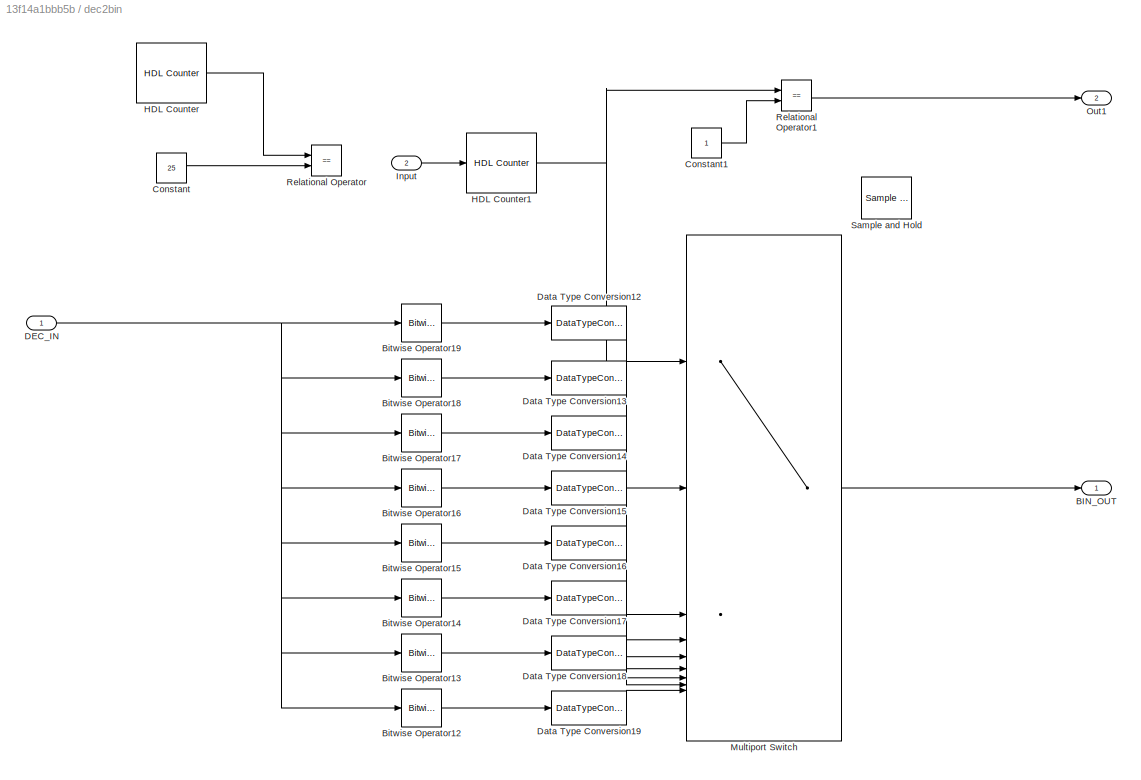
BLOCK [SubSystem] dec2bin
BLOCK [Outport] dec2bin/BIN_OUT
BLOCK [Reference] dec2bin/Bitwise Operator12  REF=simulink/Logic and Bit
Operations/Bitwise
Operator
  SourceBlock = simulink/Logic and Bit\nOperations/Bitwise\nOperator
  SourceType = Bitwise Operator
BLOCK [Reference] dec2bin/Bitwise Operator13  REF=simulink/Logic and Bit
Operations/Bitwise
Operator
  SourceBlock = simulink/Logic and Bit\nOperations/Bitwise\nOperator
  SourceType = Bitwise Operator
BLOCK [Reference] dec2bin/Bitwise Operator14  REF=simulink/Logic and Bit
Operations/Bitwise
Operator
  SourceBlock = simulink/Logic and Bit\nOperations/Bitwise\nOperator
  SourceType = Bitwise Operator
BLOCK [Reference] dec2bin/Bitwise Operator15  REF=simulink/Logic and Bit
Operations/Bitwise
Operator
  SourceBlock = simulink/Logic and Bit\nOperations/Bitwise\nOperator
  SourceType = Bitwise Operator
BLOCK [Reference] dec2bin/Bitwise Operator16  REF=simulink/Logic and Bit
Operations/Bitwise
Operator
  SourceBlock = simulink/Logic and Bit\nOperations/Bitwise\nOperator
  SourceType = Bitwise Operator
BLOCK [Reference] dec2bin/Bitwise Operator17  REF=simulink/Logic and Bit
Operations/Bitwise
Operator
  SourceBlock = simulink/Logic and Bit\nOperations/Bitwise\nOperator
  SourceType = Bitwise Operator
BLOCK [Reference] dec2bin/Bitwise Operator18  REF=simulink/Logic and Bit
Operations/Bitwise
Operator
  SourceBlock = simulink/Logic and Bit\nOperations/Bitwise\nOperator
  SourceType = Bitwise Operator
BLOCK [Reference] dec2bin/Bitwise Operator19  REF=simulink/Logic and Bit
Operations/Bitwise
Operator
  SourceBlock = simulink/Logic and Bit\nOperations/Bitwise\nOperator
  SourceType = Bitwise Operator
BLOCK [Constant] dec2bin/Constant
  Commented = on
  OutDataTypeStr = uint8
  Value = 25
BLOCK [Constant] dec2bin/Constant1
BLOCK [Inport] dec2bin/DEC_IN
  OutDataTypeStr = uint8
BLOCK [DataTypeConversion] dec2bin/Data Type Conversion12
  OutDataTypeStr = boolean
  RndMeth = Floor
  SaturateOnIntegerOverflow = off
BLOCK [DataTypeConversion] dec2bin/Data Type Conversion13
  OutDataTypeStr = boolean
  RndMeth = Floor
  SaturateOnIntegerOverflow = off
BLOCK [DataTypeConversion] dec2bin/Data Type Conversion14
  OutDataTypeStr = boolean
  RndMeth = Floor
  SaturateOnIntegerOverflow = off
BLOCK [DataTypeConversion] dec2bin/Data Type Conversion15
  OutDataTypeStr = boolean
  RndMeth = Floor
  SaturateOnIntegerOverflow = off
BLOCK [DataTypeConversion] dec2bin/Data Type Conversion16
  OutDataTypeStr = boolean
  RndMeth = Floor
  SaturateOnIntegerOverflow = off
BLOCK [DataTypeConversion] dec2bin/Data Type Conversion17
  OutDataTypeStr = boolean
  RndMeth = Floor
  SaturateOnIntegerOverflow = off
BLOCK [DataTypeConversion] dec2bin/Data Type Conversion18
  OutDataTypeStr = boolean
  RndMeth = Floor
  SaturateOnIntegerOverflow = off
BLOCK [DataTypeConversion] dec2bin/Data Type Conversion19
  OutDataTypeStr = boolean
  RndMeth = Floor
  SaturateOnIntegerOverflow = off
BLOCK [Reference] dec2bin/HDL Counter  REF=hdlsllib/Sources/HDL Counter
  Commented = on
  SourceBlock = hdlsllib/Sources/HDL Counter
  SourceType = HDL Counter
BLOCK [Reference] dec2bin/HDL Counter1  REF=hdlsllib/Sources/HDL Counter
  SourceBlock = hdlsllib/Sources/HDL Counter
  SourceType = HDL Counter
BLOCK [Inport] dec2bin/Input
  Port = 2
BLOCK [MultiPortSwitch] dec2bin/Multiport Switch
  DiagnosticForDefault = Warning
  InputSameDT = off
  Inputs = 8
  SaturateOnIntegerOverflow = off
BLOCK [Outport] dec2bin/Out1
  Port = 2
  VectorParamsAs1DForOutWhenUnconnected = off
BLOCK [RelationalOperator] dec2bin/Relational Operator
  Commented = on
  InputSameDT = off
  Operator = ==
  OutDataTypeStr = boolean
  RndMeth = Simplest
BLOCK [RelationalOperator] dec2bin/Relational Operator1
  InputSameDT = off
  Operator = ==
  OutDataTypeStr = boolean
  RndMeth = Simplest
BLOCK [Reference] dec2bin/Sample and Hold  REF=dspsigops/Sample
and Hold
  SourceBlock = dspsigops/Sample\nand Hold
  SourceType = Sample and Hold
BLOCK [SubSystem] dec2bin2
  Commented = on
BLOCK [Outport] dec2bin2/BIN_OUT
BLOCK [Reference] dec2bin2/Bitwise Operator12  REF=simulink/Logic and Bit
Operations/Bitwise
Operator
  SourceBlock = simulink/Logic and Bit\nOperations/Bitwise\nOperator
  SourceType = Bitwise Operator
BLOCK [Reference] dec2bin2/Bitwise Operator13  REF=simulink/Logic and Bit
Operations/Bitwise
Operator
  SourceBlock = simulink/Logic and Bit\nOperations/Bitwise\nOperator
  SourceType = Bitwise Operator
BLOCK [Reference] dec2bin2/Bitwise Operator14  REF=simulink/Logic and Bit
Operations/Bitwise
Operator
  SourceBlock = simulink/Logic and Bit\nOperations/Bitwise\nOperator
  SourceType = Bitwise Operator
BLOCK [Reference] dec2bin2/Bitwise Operator15  REF=simulink/Logic and Bit
Operations/Bitwise
Operator
  SourceBlock = simulink/Logic and Bit\nOperations/Bitwise\nOperator
  SourceType = Bitwise Operator
BLOCK [Reference] dec2bin2/Bitwise Operator16  REF=simulink/Logic and Bit
Operations/Bitwise
Operator
  SourceBlock = simulink/Logic and Bit\nOperations/Bitwise\nOperator
  SourceType = Bitwise Operator
BLOCK [Reference] dec2bin2/Bitwise Operator17  REF=simulink/Logic and Bit
Operations/Bitwise
Operator
  SourceBlock = simulink/Logic and Bit\nOperations/Bitwise\nOperator
  SourceType = Bitwise Operator
BLOCK [Reference] dec2bin2/Bitwise Operator18  REF=simulink/Logic and Bit
Operations/Bitwise
Operator
  SourceBlock = simulink/Logic and Bit\nOperations/Bitwise\nOperator
  SourceType = Bitwise Operator
BLOCK [Reference] dec2bin2/Bitwise Operator19  REF=simulink/Logic and Bit
Operations/Bitwise
Operator
  SourceBlock = simulink/Logic and Bit\nOperations/Bitwise\nOperator
  SourceType = Bitwise Operator
BLOCK [Reference] dec2bin2/Counter Limited  REF=hdlsllib/Sources/Counter
Limited
  SourceBlock = hdlsllib/Sources/Counter\nLimited
  SourceType = Counter Limited
BLOCK [Inport] dec2bin2/DEC_IN
  OutDataTypeStr = uint8
BLOCK [DataTypeConversion] dec2bin2/Data Type Conversion12
  OutDataTypeStr = boolean
  RndMeth = Floor
  SaturateOnIntegerOverflow = off
BLOCK [DataTypeConversion] dec2bin2/Data Type Conversion13
  OutDataTypeStr = boolean
  RndMeth = Floor
  SaturateOnIntegerOverflow = off
BLOCK [DataTypeConversion] dec2bin2/Data Type Conversion14
  OutDataTypeStr = boolean
  RndMeth = Floor
  SaturateOnIntegerOverflow = off
BLOCK [DataTypeConversion] dec2bin2/Data Type Conversion15
  OutDataTypeStr = boolean
  RndMeth = Floor
  SaturateOnIntegerOverflow = off
BLOCK [DataTypeConversion] dec2bin2/Data Type Conversion16
  OutDataTypeStr = boolean
  RndMeth = Floor
  SaturateOnIntegerOverflow = off
BLOCK [DataTypeConversion] dec2bin2/Data Type Conversion17
  OutDataTypeStr = boolean
  RndMeth = Floor
  SaturateOnIntegerOverflow = off
BLOCK [DataTypeConversion] dec2bin2/Data Type Conversion18
  OutDataTypeStr = boolean
  RndMeth = Floor
  SaturateOnIntegerOverflow = off
BLOCK [DataTypeConversion] dec2bin2/Data Type Conversion19
  OutDataTypeStr = boolean
  RndMeth = Floor
  SaturateOnIntegerOverflow = off
BLOCK [MultiPortSwitch] dec2bin2/Multiport Switch
  DataPortOrder = Zero-based contiguous
  InputSameDT = off
  Inputs = 8
  SaturateOnIntegerOverflow = off
  zeroidx = on
BLOCK [RateTransition] dec2bin2/Rate Transition
  OutPortSampleTime = 0.125/rb
BLOCK [SubSystem] sigSource
  Commented = on
BLOCK [Lookup_n-D] sigSource/1-D Lookup Table
  BreakpointsForDimension1 = [0:18800-1]'
  BreakpointsForDimension1FirstPoint = 10
  BreakpointsForDimension1Spacing = 12
  BreakpointsForDimension2FirstPoint = 10
  BreakpointsForDimension2Spacing = 12
  DiagnosticForOutOfRangeInput = Error
  IndexSearchMethod = Evenly spaced points
  InputPortMap = u0
  InternalRulePriority = Speed
  InterpMethod = Flat
  LookupTableObject = ''
  NumberOfTableDimensions = 1
  OutDataTypeStr = uint8
  RndMeth = Simplest
  Table = sourceData
BLOCK [Lookup_n-D] sigSource/1-D Lookup Table1
  BreakpointsForDimension1 = [0:1020-1]'
  BreakpointsForDimension1FirstPoint = 10
  BreakpointsForDimension1Spacing = 12
  BreakpointsForDimension2FirstPoint = 10
  BreakpointsForDimension2Spacing = 12
  DiagnosticForOutOfRangeInput = Error
  IndexSearchMethod = Evenly spaced points
  InputPortMap = u0
  InternalRulePriority = Speed
  InterpMethod = Flat
  LookupTableObject = ''
  NumberOfTableDimensions = 1
  OutDataTypeStr = uint8
  RndMeth = Simplest
  Table = oneData
BLOCK [Constant] sigSource/Constant
  OutDataTypeStr = uint16
  SampleTime = 1/fs
  Value = 204
BLOCK [DataTypeConversion] sigSource/DATA_IN
  OutDataTypeStr = inDataType
  RndMeth = Floor
  SaturateOnIntegerOverflow = off
BLOCK [DataTypeConversion] sigSource/DATA_IN1
  OutDataTypeStr = boolean
  RndMeth = Floor
  SaturateOnIntegerOverflow = off
BLOCK [DataTypeConversion] sigSource/DATA_IN2
  OutDataTypeStr = boolean
  RndMeth = Floor
  SaturateOnIntegerOverflow = off
BLOCK [DataTypeConversion] sigSource/DATA_IN3
  OutDataTypeStr = boolean
  RndMeth = Floor
  SaturateOnIntegerOverflow = off
BLOCK [DataTypeConversion] sigSource/DATA_IN4
  OutDataTypeStr = inDataType
  RndMeth = Floor
  SaturateOnIntegerOverflow = off
BLOCK [Reference] sigSource/HDL Counter  REF=hdlsllib/Sources/HDL Counter
  SourceBlock = hdlsllib/Sources/HDL Counter
  SourceType = HDL Counter
BLOCK [Reference] sigSource/HDL Counter1  REF=hdlsllib/Sources/HDL Counter
  SourceBlock = hdlsllib/Sources/HDL Counter
  SourceType = HDL Counter
BLOCK [SubSystem] sigSource/MATLAB Function
  ErrorFcn = Stateflow.Translate.translate
  PermitHierarchicalResolution = ExplicitOnly
  SFBlockType = MATLAB Function
  TreatAsAtomicUnit = on
BLOCK [Demux] sigSource/MATLAB Function/ Demux 
  Outputs = 1
BLOCK [S-Function] sigSource/MATLAB Function/ SFunction 
  EnableBusSupport = on
  FunctionName = sf_sfun
  PortCounts = [1 4]
  SFcnIsStateOwnerBlock = off
  SFunctionDeploymentMode = off
  Tag = Stateflow S-Function 3
BLOCK [Terminator] sigSource/MATLAB Function/ Terminator 
BLOCK [Outport] sigSource/MATLAB Function/enable
  VectorParamsAs1DForOutWhenUnconnected = off
BLOCK [Outport] sigSource/MATLAB Function/endSignal
  Port = 3
BLOCK [Outport] sigSource/MATLAB Function/start
  Port = 2
BLOCK [Inport] sigSource/MATLAB Function/totalLength
BLOCK [Outport] sigSource/simDataIn
  Port = 4
BLOCK [Outport] sigSource/simEN
  Port = 3
BLOCK [Outport] sigSource/simEnd
  Port = 2
BLOCK [Outport] sigSource/simStart
BLOCK [SubSystem] sigSource11
  Commented = on
BLOCK [Lookup_n-D] sigSource11/1-D Lookup Table
  BreakpointsForDimension1 = [0:18800-1]'
  BreakpointsForDimension1FirstPoint = 10
  BreakpointsForDimension1Spacing = 12
  BreakpointsForDimension2FirstPoint = 10
  BreakpointsForDimension2Spacing = 12
  DiagnosticForOutOfRangeInput = Error
  IndexSearchMethod = Evenly spaced points
  InputPortMap = u0
  InternalRulePriority = Speed
  InterpMethod = Flat
  LookupTableObject = ''
  NumberOfTableDimensions = 1
  OutDataTypeStr = uint8
  RndMeth = Simplest
  Table = sourceData
BLOCK [Lookup_n-D] sigSource11/1-D Lookup Table1
  BreakpointsForDimension1 = [0:1020-1]'
  BreakpointsForDimension1FirstPoint = 10
  BreakpointsForDimension1Spacing = 12
  BreakpointsForDimension2FirstPoint = 10
  BreakpointsForDimension2Spacing = 12
  Commented = on
  DiagnosticForOutOfRangeInput = Error
  IndexSearchMethod = Evenly spaced points
  InputPortMap = u0
  InternalRulePriority = Speed
  InterpMethod = Flat
  LookupTableObject = ''
  NumberOfTableDimensions = 1
  OutDataTypeStr = uint8
  RndMeth = Simplest
  Table = oneData
BLOCK [Constant] sigSource11/Constant
  OutDataTypeStr = uint16
  SampleTime = 1/fs
  Value = 204
BLOCK [DataTypeConversion] sigSource11/DATA_IN
  OutDataTypeStr = inDataType
  RndMeth = Floor
  SaturateOnIntegerOverflow = off
BLOCK [DataTypeConversion] sigSource11/DATA_IN1
  OutDataTypeStr = boolean
  RndMeth = Floor
  SaturateOnIntegerOverflow = off
BLOCK [DataTypeConversion] sigSource11/DATA_IN2
  OutDataTypeStr = boolean
  RndMeth = Floor
  SaturateOnIntegerOverflow = off
BLOCK [DataTypeConversion] sigSource11/DATA_IN3
  OutDataTypeStr = boolean
  RndMeth = Floor
  SaturateOnIntegerOverflow = off
BLOCK [DataTypeConversion] sigSource11/DATA_IN4
  Commented = on
  OutDataTypeStr = inDataType
  RndMeth = Floor
  SaturateOnIntegerOverflow = off
BLOCK [Reference] sigSource11/HDL Counter  REF=hdlsllib/Sources/HDL Counter
  SourceBlock = hdlsllib/Sources/HDL Counter
  SourceType = HDL Counter
BLOCK [Reference] sigSource11/HDL Counter1  REF=hdlsllib/Sources/HDL Counter
  Commented = on
  SourceBlock = hdlsllib/Sources/HDL Counter
  SourceType = HDL Counter
BLOCK [SubSystem] sigSource11/MATLAB Function
  ErrorFcn = Stateflow.Translate.translate
  PermitHierarchicalResolution = ExplicitOnly
  SFBlockType = MATLAB Function
  TreatAsAtomicUnit = on
BLOCK [Demux] sigSource11/MATLAB Function/ Demux 
  Outputs = 1
BLOCK [S-Function] sigSource11/MATLAB Function/ SFunction 
  EnableBusSupport = on
  FunctionName = sf_sfun
  PortCounts = [1 4]
  SFcnIsStateOwnerBlock = off
  SFunctionDeploymentMode = off
  Tag = Stateflow S-Function 5
BLOCK [Terminator] sigSource11/MATLAB Function/ Terminator 
BLOCK [Outport] sigSource11/MATLAB Function/enable
  VectorParamsAs1DForOutWhenUnconnected = off
BLOCK [Outport] sigSource11/MATLAB Function/endSignal
  Port = 3
BLOCK [Outport] sigSource11/MATLAB Function/start
  Port = 2
BLOCK [Inport] sigSource11/MATLAB Function/totalLength
BLOCK [Outport] sigSource11/simDataIn
  Port = 4
BLOCK [Outport] sigSource11/simEN
  Port = 3
BLOCK [Outport] sigSource11/simEnd
  Port = 2
BLOCK [Outport] sigSource11/simStart
ANNOTATION Conv_Encoder/int2bin: 最低位
ANNOTATION Conv_Encoder/int2bin1: 最低位
ANNOTATION Subsystem: I路
ANNOTATION Subsystem: Q路
LINE  Scramble/10:1 ->  Scramble/11:1
LINE  Scramble/11:1 ->  Scramble/12:1
LINE  Scramble/12:1 ->  Scramble/13:1
LINE  Scramble/13:1 ->  Scramble/14:1
NET  Scramble/14:1 ->  Scramble/15:1,  Scramble/Bitwise Operator2:1
LINE  Scramble/15:1 ->  Scramble/Bitwise Operator2:2
LINE  Scramble/1:1 ->  Scramble/2:1
LINE  Scramble/2:1 ->  Scramble/3:1
LINE  Scramble/3:1 ->  Scramble/4:1
LINE  Scramble/4:1 ->  Scramble/5:1
LINE  Scramble/5:1 ->  Scramble/6:1
LINE  Scramble/6:1 ->  Scramble/7:1
LINE  Scramble/7:1 ->  Scramble/8:1
LINE  Scramble/8:1 ->  Scramble/9:1
LINE  Scramble/9:1 ->  Scramble/10:1
LINE  Scramble/Bitwise Operator1:1 ->  Scramble/ Scramble_OUT:1
NET  Scramble/Bitwise Operator2:1 ->  Scramble/1:1,  Scramble/Bitwise Operator:1
LINE  Scramble/Bitwise Operator:1 ->  Scramble/Bitwise Operator1:1
LINE  Scramble/EN:1 ->  Scramble/Bitwise Operator:2
LINE  Scramble/SEQ_IN:1 ->  Scramble/Bitwise Operator1:2
LINE Con_Encoder/Convolutional Encoder2:1 -> Con_Encoder/ConvOut:1
LINE Con_Encoder/Convolutional Encoder2:2 -> Con_Encoder/Terminator:1
LINE Con_Encoder/In1:1 -> Con_Encoder/Convolutional Encoder2:1
LINE Con_Encoder/VldIn:1 -> Con_Encoder/Convolutional Encoder2:2
LINE Con_Encoder:1 -> QPSK:1
NET Conv_Encoder/0:1 -> Conv_Encoder/1:1, Conv_Encoder/Bitwise XOR1:1, Conv_Encoder/Bitwise XOR:1
NET Conv_Encoder/1:1 -> Conv_Encoder/2:1, Conv_Encoder/Bitwise XOR:2
NET Conv_Encoder/2:1 -> Conv_Encoder/3:1, Conv_Encoder/Bitwise XOR1:2, Conv_Encoder/Bitwise XOR:3
NET Conv_Encoder/3:1 -> Conv_Encoder/4:1, Conv_Encoder/Bitwise XOR1:3, Conv_Encoder/Bitwise XOR:4
LINE Conv_Encoder/4:1 -> Conv_Encoder/5:1
NET Conv_Encoder/5:1 -> Conv_Encoder/6:1, Conv_Encoder/Bitwise XOR1:4
NET Conv_Encoder/6:1 -> Conv_Encoder/Bitwise XOR1:5, Conv_Encoder/Bitwise XOR:5
LINE Conv_Encoder/Bitwise XOR1:1 -> Conv_Encoder/int2bin1:1
LINE Conv_Encoder/Bitwise XOR:1 -> Conv_Encoder/int2bin:1
NET Conv_Encoder/Constant:1 -> Conv_Encoder/0:2, Conv_Encoder/1:2, Conv_Encoder/2:2, Conv_Encoder/3:2, Conv_Encoder/4:2, Conv_Encoder/5:2, Conv_Encoder/6:2
LINE Conv_Encoder/Conv_In:1 -> Conv_Encoder/0:1
NET Conv_Encoder/int2bin/Demux:1 -> Conv_Encoder/int2bin/PISO:1, Conv_Encoder/int2bin/Scope3:1
NET Conv_Encoder/int2bin/Demux:2 -> Conv_Encoder/int2bin/PISO:2, Conv_Encoder/int2bin/Scope3:2
NET Conv_Encoder/int2bin/Demux:3 -> Conv_Encoder/int2bin/PISO:3, Conv_Encoder/int2bin/Scope3:3
NET Conv_Encoder/int2bin/Demux:4 -> Conv_Encoder/int2bin/PISO:4, Conv_Encoder/int2bin/Scope3:4
NET Conv_Encoder/int2bin/Demux:5 -> Conv_Encoder/int2bin/PISO:5, Conv_Encoder/int2bin/Scope4:1
NET Conv_Encoder/int2bin/Demux:6 -> Conv_Encoder/int2bin/PISO:6, Conv_Encoder/int2bin/Scope4:2
NET Conv_Encoder/int2bin/Demux:7 -> Conv_Encoder/int2bin/PISO:7, Conv_Encoder/int2bin/Scope4:3
NET Conv_Encoder/int2bin/Demux:8 -> Conv_Encoder/int2bin/PISO:8, Conv_Encoder/int2bin/Scope4:4
LINE Conv_Encoder/int2bin/PISO/1:1 -> Conv_Encoder/int2bin/PISO/Delay:1
LINE Conv_Encoder/int2bin/PISO/2:1 -> Conv_Encoder/int2bin/PISO/Delay1:3
LINE Conv_Encoder/int2bin/PISO/3:1 -> Conv_Encoder/int2bin/PISO/Delay2:3
LINE Conv_Encoder/int2bin/PISO/4:1 -> Conv_Encoder/int2bin/PISO/Delay3:3
LINE Conv_Encoder/int2bin/PISO/5:1 -> Conv_Encoder/int2bin/PISO/Delay4:3
LINE Conv_Encoder/int2bin/PISO/6:1 -> Conv_Encoder/int2bin/PISO/Delay5:3
LINE Conv_Encoder/int2bin/PISO/7:1 -> Conv_Encoder/int2bin/PISO/Delay6:3
LINE Conv_Encoder/int2bin/PISO/8:1 -> Conv_Encoder/int2bin/PISO/Delay7:3
NET Conv_Encoder/int2bin/PISO/Constant:1 -> Conv_Encoder/int2bin/PISO/Delay1:2, Conv_Encoder/int2bin/PISO/Delay2:2, Conv_Encoder/int2bin/PISO/Delay3:2, Conv_Encoder/int2bin/PISO/Delay4:2, Conv_Encoder/int2bin/PISO/Delay5:2, Conv_Encoder/int2bin/PISO/Delay6:2, Conv_Encoder/int2bin/PISO/Delay7:2, Conv_Encoder/int2bin/PISO/Delay:2
LINE Conv_Encoder/int2bin/PISO/Delay1:1 -> Conv_Encoder/int2bin/PISO/Delay2:1
LINE Conv_Encoder/int2bin/PISO/Delay2:1 -> Conv_Encoder/int2bin/PISO/Delay3:1
LINE Conv_Encoder/int2bin/PISO/Delay3:1 -> Conv_Encoder/int2bin/PISO/Delay4:1
LINE Conv_Encoder/int2bin/PISO/Delay4:1 -> Conv_Encoder/int2bin/PISO/Delay5:1
LINE Conv_Encoder/int2bin/PISO/Delay5:1 -> Conv_Encoder/int2bin/PISO/Delay6:1
LINE Conv_Encoder/int2bin/PISO/Delay6:1 -> Conv_Encoder/int2bin/PISO/Delay7:1
LINE Conv_Encoder/int2bin/PISO/Delay7:1 -> Conv_Encoder/int2bin/PISO/Out1:1
LINE Conv_Encoder/int2bin/PISO/Delay:1 -> Conv_Encoder/int2bin/PISO/Delay1:1
LINE Conv_Encoder/int2bin/PISO:1 -> Conv_Encoder/int2bin/Out1:1
LINE Conv_Encoder/int2bin/input:1 -> Conv_Encoder/int2bin/uint8tobin:1
LINE Conv_Encoder/int2bin/uint8tobin:1 -> Conv_Encoder/int2bin/Demux:1
NET Conv_Encoder/int2bin1/Demux:1 -> Conv_Encoder/int2bin1/PISO:1, Conv_Encoder/int2bin1/Scope3:1
NET Conv_Encoder/int2bin1/Demux:2 -> Conv_Encoder/int2bin1/PISO:2, Conv_Encoder/int2bin1/Scope3:2
NET Conv_Encoder/int2bin1/Demux:3 -> Conv_Encoder/int2bin1/PISO:3, Conv_Encoder/int2bin1/Scope3:3
NET Conv_Encoder/int2bin1/Demux:4 -> Conv_Encoder/int2bin1/PISO:4, Conv_Encoder/int2bin1/Scope3:4
NET Conv_Encoder/int2bin1/Demux:5 -> Conv_Encoder/int2bin1/PISO:5, Conv_Encoder/int2bin1/Scope4:1
NET Conv_Encoder/int2bin1/Demux:6 -> Conv_Encoder/int2bin1/PISO:6, Conv_Encoder/int2bin1/Scope4:2
NET Conv_Encoder/int2bin1/Demux:7 -> Conv_Encoder/int2bin1/PISO:7, Conv_Encoder/int2bin1/Scope4:3
NET Conv_Encoder/int2bin1/Demux:8 -> Conv_Encoder/int2bin1/PISO:8, Conv_Encoder/int2bin1/Scope4:4
LINE Conv_Encoder/int2bin1/PISO/1:1 -> Conv_Encoder/int2bin1/PISO/Delay:1
LINE Conv_Encoder/int2bin1/PISO/2:1 -> Conv_Encoder/int2bin1/PISO/Delay1:3
LINE Conv_Encoder/int2bin1/PISO/3:1 -> Conv_Encoder/int2bin1/PISO/Delay2:3
LINE Conv_Encoder/int2bin1/PISO/4:1 -> Conv_Encoder/int2bin1/PISO/Delay3:3
LINE Conv_Encoder/int2bin1/PISO/5:1 -> Conv_Encoder/int2bin1/PISO/Delay4:3
LINE Conv_Encoder/int2bin1/PISO/6:1 -> Conv_Encoder/int2bin1/PISO/Delay5:3
LINE Conv_Encoder/int2bin1/PISO/7:1 -> Conv_Encoder/int2bin1/PISO/Delay6:3
LINE Conv_Encoder/int2bin1/PISO/8:1 -> Conv_Encoder/int2bin1/PISO/Delay7:3
NET Conv_Encoder/int2bin1/PISO/Constant:1 -> Conv_Encoder/int2bin1/PISO/Delay1:2, Conv_Encoder/int2bin1/PISO/Delay2:2, Conv_Encoder/int2bin1/PISO/Delay3:2, Conv_Encoder/int2bin1/PISO/Delay4:2, Conv_Encoder/int2bin1/PISO/Delay5:2, Conv_Encoder/int2bin1/PISO/Delay6:2, Conv_Encoder/int2bin1/PISO/Delay7:2, Conv_Encoder/int2bin1/PISO/Delay:2
LINE Conv_Encoder/int2bin1/PISO/Delay1:1 -> Conv_Encoder/int2bin1/PISO/Delay2:1
LINE Conv_Encoder/int2bin1/PISO/Delay2:1 -> Conv_Encoder/int2bin1/PISO/Delay3:1
LINE Conv_Encoder/int2bin1/PISO/Delay3:1 -> Conv_Encoder/int2bin1/PISO/Delay4:1
LINE Conv_Encoder/int2bin1/PISO/Delay4:1 -> Conv_Encoder/int2bin1/PISO/Delay5:1
LINE Conv_Encoder/int2bin1/PISO/Delay5:1 -> Conv_Encoder/int2bin1/PISO/Delay6:1
LINE Conv_Encoder/int2bin1/PISO/Delay6:1 -> Conv_Encoder/int2bin1/PISO/Delay7:1
LINE Conv_Encoder/int2bin1/PISO/Delay7:1 -> Conv_Encoder/int2bin1/PISO/Out1:1
LINE Conv_Encoder/int2bin1/PISO/Delay:1 -> Conv_Encoder/int2bin1/PISO/Delay1:1
LINE Conv_Encoder/int2bin1/PISO:1 -> Conv_Encoder/int2bin1/Out1:1
LINE Conv_Encoder/int2bin1/input:1 -> Conv_Encoder/int2bin1/uint8tobin:1
LINE Conv_Encoder/int2bin1/uint8tobin:1 -> Conv_Encoder/int2bin1/Demux:1
LINE Conv_Encoder/int2bin1:1 -> Conv_Encoder/Y:1
LINE Conv_Encoder/int2bin:1 -> Conv_Encoder/X:1
NET Data Type Conversion:1 -> Error Rate Calculation:2, Subsystem1:1
LINE DataSource_Scrambler/CLKdivide/Constant1:1 -> DataSource_Scrambler/CLKdivide/Relational Operator:2
LINE DataSource_Scrambler/CLKdivide/Constant:1 -> DataSource_Scrambler/CLKdivide/Relational Operator1:2
LINE DataSource_Scrambler/CLKdivide/Delay:1 -> DataSource_Scrambler/CLKdivide/BinEn:1
LINE DataSource_Scrambler/CLKdivide/Detect Rise Positive:1 -> DataSource_Scrambler/CLKdivide/DataGenEn:1
LINE DataSource_Scrambler/CLKdivide/HDL Counter2:1 -> DataSource_Scrambler/CLKdivide/Relational Operator:1
LINE DataSource_Scrambler/CLKdivide/HDL Counter:1 -> DataSource_Scrambler/CLKdivide/Relational Operator1:1
LINE DataSource_Scrambler/CLKdivide/Relational Operator1:1 -> DataSource_Scrambler/CLKdivide/Detect Rise Positive:1
NET DataSource_Scrambler/CLKdivide/Relational Operator:1 -> DataSource_Scrambler/CLKdivide/Delay:1, DataSource_Scrambler/CLKdivide/HDL Counter:1
NET DataSource_Scrambler/CLKdivide:1 -> DataSource_Scrambler/Delay5:1, DataSource_Scrambler/HeaderProcess:2, DataSource_Scrambler/RS_Ctrl:1, DataSource_Scrambler/bit_sys:enable, DataSource_Scrambler/myScrambler:trigger, DataSource_Scrambler/sigSource:1
LINE DataSource_Scrambler/CLKdivide:2 -> DataSource_Scrambler/Delay4:1
LINE DataSource_Scrambler/Delay10:1 -> DataSource_Scrambler/myScrambler:1
LINE DataSource_Scrambler/Delay1:1 -> DataSource_Scrambler/simEnd:1
LINE DataSource_Scrambler/Delay2:1 -> DataSource_Scrambler/simEN:1
LINE DataSource_Scrambler/Delay3:1 -> DataSource_Scrambler/ScramblerOut:1
LINE DataSource_Scrambler/Delay4:1 -> DataSource_Scrambler/BinEn:1
LINE DataSource_Scrambler/Delay5:1 -> DataSource_Scrambler/DataGenEn:1
LINE DataSource_Scrambler/Delay6:1 -> DataSource_Scrambler/TSout:1
LINE DataSource_Scrambler/Delay7:1 -> DataSource_Scrambler/sigSource:enable
LINE DataSource_Scrambler/Delay8:1 -> DataSource_Scrambler/myScrambler:2
LINE DataSource_Scrambler/Delay9:1 -> DataSource_Scrambler/myScrambler:3
LINE DataSource_Scrambler/Delay:1 -> DataSource_Scrambler/simStart:1
LINE DataSource_Scrambler/HeaderProcess/Bitwise Operator:1 -> DataSource_Scrambler/HeaderProcess/Multiport Switch1:3
LINE DataSource_Scrambler/HeaderProcess/Constant1:1 -> DataSource_Scrambler/HeaderProcess/Multiport Switch:2
LINE DataSource_Scrambler/HeaderProcess/Constant2:1 -> DataSource_Scrambler/HeaderProcess/Relational Operator1:2
LINE DataSource_Scrambler/HeaderProcess/Constant:1 -> DataSource_Scrambler/HeaderProcess/Relational Operator:2
NET DataSource_Scrambler/HeaderProcess/DataGenEn:1 -> DataSource_Scrambler/HeaderProcess/HDL Counter1:1, DataSource_Scrambler/HeaderProcess/HDL Counter:1
LINE DataSource_Scrambler/HeaderProcess/HDL Counter1:1 -> DataSource_Scrambler/HeaderProcess/Relational Operator1:1
LINE DataSource_Scrambler/HeaderProcess/HDL Counter:1 -> DataSource_Scrambler/HeaderProcess/Relational Operator:1
LINE DataSource_Scrambler/HeaderProcess/Logical Operator:1 -> DataSource_Scrambler/HeaderProcess/ScrambleEn:1
LINE DataSource_Scrambler/HeaderProcess/Multiport Switch1:1 -> DataSource_Scrambler/HeaderProcess/ProcessDataOut:1
NET DataSource_Scrambler/HeaderProcess/Multiport Switch:1 -> DataSource_Scrambler/HeaderProcess/Bitwise Operator:1, DataSource_Scrambler/HeaderProcess/Multiport Switch1:2
NET DataSource_Scrambler/HeaderProcess/Relational Operator1:1 -> DataSource_Scrambler/HeaderProcess/Logical Operator:1, DataSource_Scrambler/HeaderProcess/Multiport Switch1:1, DataSource_Scrambler/HeaderProcess/ScrambleRst:1
NET DataSource_Scrambler/HeaderProcess/Relational Operator:1 -> DataSource_Scrambler/HeaderProcess/DataGenEN:1, DataSource_Scrambler/HeaderProcess/Multiport Switch:1
LINE DataSource_Scrambler/HeaderProcess/simDataIn:1 -> DataSource_Scrambler/HeaderProcess/Multiport Switch:3
LINE DataSource_Scrambler/HeaderProcess:1 -> DataSource_Scrambler/Delay7:1
LINE DataSource_Scrambler/HeaderProcess:2 -> DataSource_Scrambler/Delay8:1
LINE DataSource_Scrambler/HeaderProcess:3 -> DataSource_Scrambler/Delay9:1
NET DataSource_Scrambler/HeaderProcess:4 -> DataSource_Scrambler/Delay10:1, DataSource_Scrambler/Delay6:1
LINE DataSource_Scrambler/RS_Ctrl/1-D Lookup Table1:1 -> DataSource_Scrambler/RS_Ctrl/DATA_IN1:1
LINE DataSource_Scrambler/RS_Ctrl/1-D Lookup Table2:1 -> DataSource_Scrambler/RS_Ctrl/DATA_IN2:1
LINE DataSource_Scrambler/RS_Ctrl/1-D Lookup Table3:1 -> DataSource_Scrambler/RS_Ctrl/DATA_IN3:1
LINE DataSource_Scrambler/RS_Ctrl/DATA_IN1:1 -> DataSource_Scrambler/RS_Ctrl/simStart:1
LINE DataSource_Scrambler/RS_Ctrl/DATA_IN2:1 -> DataSource_Scrambler/RS_Ctrl/simEnd:1
LINE DataSource_Scrambler/RS_Ctrl/DATA_IN3:1 -> DataSource_Scrambler/RS_Ctrl/simEN:1
NET DataSource_Scrambler/RS_Ctrl/DataGenEn:1 -> DataSource_Scrambler/RS_Ctrl/HDL Counter1:1, DataSource_Scrambler/RS_Ctrl/HDL Counter2:1, DataSource_Scrambler/RS_Ctrl/HDL Counter3:1
LINE DataSource_Scrambler/RS_Ctrl/HDL Counter1:1 -> DataSource_Scrambler/RS_Ctrl/1-D Lookup Table1:1
LINE DataSource_Scrambler/RS_Ctrl/HDL Counter2:1 -> DataSource_Scrambler/RS_Ctrl/1-D Lookup Table2:1
LINE DataSource_Scrambler/RS_Ctrl/HDL Counter3:1 -> DataSource_Scrambler/RS_Ctrl/1-D Lookup Table3:1
LINE DataSource_Scrambler/RS_Ctrl:1 -> DataSource_Scrambler/bit_sys:1
LINE DataSource_Scrambler/RS_Ctrl:2 -> DataSource_Scrambler/bit_sys:2
LINE DataSource_Scrambler/RS_Ctrl:3 -> DataSource_Scrambler/bit_sys:3
LINE DataSource_Scrambler/bit_sys/Delay1:1 -> DataSource_Scrambler/bit_sys/Out2:1
LINE DataSource_Scrambler/bit_sys/Delay2:1 -> DataSource_Scrambler/bit_sys/Out3:1
LINE DataSource_Scrambler/bit_sys/Delay:1 -> DataSource_Scrambler/bit_sys/Out1:1
LINE DataSource_Scrambler/bit_sys/simEN:1 -> DataSource_Scrambler/bit_sys/Delay2:1
LINE DataSource_Scrambler/bit_sys/simEnd:1 -> DataSource_Scrambler/bit_sys/Delay1:1
LINE DataSource_Scrambler/bit_sys/simStart:1 -> DataSource_Scrambler/bit_sys/Delay:1
LINE DataSource_Scrambler/bit_sys:1 -> DataSource_Scrambler/Delay:1
LINE DataSource_Scrambler/bit_sys:2 -> DataSource_Scrambler/Delay1:1
LINE DataSource_Scrambler/bit_sys:3 -> DataSource_Scrambler/Delay2:1
LINE DataSource_Scrambler/myScrambler/10:1 -> DataSource_Scrambler/myScrambler/11:1
LINE DataSource_Scrambler/myScrambler/11:1 -> DataSource_Scrambler/myScrambler/12:1
LINE DataSource_Scrambler/myScrambler/12:1 -> DataSource_Scrambler/myScrambler/13:1
LINE DataSource_Scrambler/myScrambler/13:1 -> DataSource_Scrambler/myScrambler/14:1
NET DataSource_Scrambler/myScrambler/14:1 -> DataSource_Scrambler/myScrambler/15:1, DataSource_Scrambler/myScrambler/Bitwise Operator:1
LINE DataSource_Scrambler/myScrambler/15:1 -> DataSource_Scrambler/myScrambler/Bitwise Operator:2
LINE DataSource_Scrambler/myScrambler/1:1 -> DataSource_Scrambler/myScrambler/2:1
LINE DataSource_Scrambler/myScrambler/2:1 -> DataSource_Scrambler/myScrambler/3:1
LINE DataSource_Scrambler/myScrambler/3:1 -> DataSource_Scrambler/myScrambler/4:1
LINE DataSource_Scrambler/myScrambler/4:1 -> DataSource_Scrambler/myScrambler/5:1
LINE DataSource_Scrambler/myScrambler/5:1 -> DataSource_Scrambler/myScrambler/6:1
LINE DataSource_Scrambler/myScrambler/6:1 -> DataSource_Scrambler/myScrambler/7:1
LINE DataSource_Scrambler/myScrambler/7:1 -> DataSource_Scrambler/myScrambler/8:1
LINE DataSource_Scrambler/myScrambler/8:1 -> DataSource_Scrambler/myScrambler/9:1
LINE DataSource_Scrambler/myScrambler/9:1 -> DataSource_Scrambler/myScrambler/10:1
LINE DataSource_Scrambler/myScrambler/Bitwise Operator1:1 -> DataSource_Scrambler/myScrambler/Bitwise Operator2:1
LINE DataSource_Scrambler/myScrambler/Bitwise Operator2:1 -> DataSource_Scrambler/myScrambler/Out1:1
NET DataSource_Scrambler/myScrambler/Bitwise Operator:1 -> DataSource_Scrambler/myScrambler/1:1, DataSource_Scrambler/myScrambler/Bitwise Operator1:1
LINE DataSource_Scrambler/myScrambler/Data Type Conversion:1 -> DataSource_Scrambler/myScrambler/Bitwise Operator1:2
LINE DataSource_Scrambler/myScrambler/DataIn:1 -> DataSource_Scrambler/myScrambler/Bitwise Operator2:2
LINE DataSource_Scrambler/myScrambler/EN:1 -> DataSource_Scrambler/myScrambler/Data Type Conversion:1
NET DataSource_Scrambler/myScrambler/RST_IniState:1 -> DataSource_Scrambler/myScrambler/10:2, DataSource_Scrambler/myScrambler/11:2, DataSource_Scrambler/myScrambler/12:2, DataSource_Scrambler/myScrambler/13:2, DataSource_Scrambler/myScrambler/14:2, DataSource_Scrambler/myScrambler/15:2, DataSource_Scrambler/myScrambler/1:2, DataSource_Scrambler/myScrambler/2:2, DataSource_Scrambler/myScrambler/3:2, DataSource_Scrambler/myScrambler/4:2, DataSource_Scrambler/myScrambler/5:2, DataSource_Scrambler/myScrambler/6:2, DataSource_Scrambler/myScrambler/7:2, DataSource_Scrambler/myScrambler/8:2, DataSource_Scrambler/myScrambler/9:2
LINE DataSource_Scrambler/myScrambler:1 -> DataSource_Scrambler/Delay3:1
LINE DataSource_Scrambler/sigSource/1-D Lookup Table:1 -> DataSource_Scrambler/sigSource/DATA_IN:1
LINE DataSource_Scrambler/sigSource/DATA_IN:1 -> DataSource_Scrambler/sigSource/simDataOut:1
LINE DataSource_Scrambler/sigSource/DataGenEn:1 -> DataSource_Scrambler/sigSource/HDL Counter:1
LINE DataSource_Scrambler/sigSource/HDL Counter:1 -> DataSource_Scrambler/sigSource/1-D Lookup Table:1
LINE DataSource_Scrambler/sigSource/Subsystem/1-D Lookup Table1:1 -> DataSource_Scrambler/sigSource/Subsystem/DATA_IN4:1
LINE DataSource_Scrambler/sigSource/Subsystem/DATA_IN4:1 -> DataSource_Scrambler/sigSource/Subsystem/Out1:1
LINE DataSource_Scrambler/sigSource/Subsystem/HDL Counter1:1 -> DataSource_Scrambler/sigSource/Subsystem/1-D Lookup Table1:1
LINE DataSource_Scrambler/sigSource/Subsystem/enb:1 -> DataSource_Scrambler/sigSource/Subsystem/HDL Counter1:1
LINE DataSource_Scrambler/sigSource:1 -> DataSource_Scrambler/HeaderProcess:1
LINE DataSource_Scrambler1/CLKdivide/Constant1:1 -> DataSource_Scrambler1/CLKdivide/Relational Operator:2
LINE DataSource_Scrambler1/CLKdivide/Constant:1 -> DataSource_Scrambler1/CLKdivide/Relational Operator1:2
LINE DataSource_Scrambler1/CLKdivide/Delay:1 -> DataSource_Scrambler1/CLKdivide/BinEn:1
LINE DataSource_Scrambler1/CLKdivide/Detect Rise Positive:1 -> DataSource_Scrambler1/CLKdivide/DataGenEn:1
LINE DataSource_Scrambler1/CLKdivide/HDL Counter2:1 -> DataSource_Scrambler1/CLKdivide/Relational Operator:1
LINE DataSource_Scrambler1/CLKdivide/HDL Counter:1 -> DataSource_Scrambler1/CLKdivide/Relational Operator1:1
LINE DataSource_Scrambler1/CLKdivide/Relational Operator1:1 -> DataSource_Scrambler1/CLKdivide/Detect Rise Positive:1
NET DataSource_Scrambler1/CLKdivide/Relational Operator:1 -> DataSource_Scrambler1/CLKdivide/Delay:1, DataSource_Scrambler1/CLKdivide/HDL Counter:1
NET DataSource_Scrambler1/CLKdivide:1 -> DataSource_Scrambler1/Delay5:1, DataSource_Scrambler1/HeaderProcess:2, DataSource_Scrambler1/myScrambler:trigger, DataSource_Scrambler1/sigSource:1
LINE DataSource_Scrambler1/CLKdivide:2 -> DataSource_Scrambler1/Delay4:1
NET DataSource_Scrambler1/Delay10:1 -> DataSource_Scrambler1/Delay6:1, DataSource_Scrambler1/HeaderProcess:1
LINE DataSource_Scrambler1/Delay1:1 -> DataSource_Scrambler1/simEnd:1
LINE DataSource_Scrambler1/Delay2:1 -> DataSource_Scrambler1/simEN:1
LINE DataSource_Scrambler1/Delay3:1 -> DataSource_Scrambler1/ScramblerOut:1
LINE DataSource_Scrambler1/Delay4:1 -> DataSource_Scrambler1/BinEn:1
LINE DataSource_Scrambler1/Delay5:1 -> DataSource_Scrambler1/DataGenEn:1
LINE DataSource_Scrambler1/Delay6:1 -> DataSource_Scrambler1/TSout:1
LINE DataSource_Scrambler1/Delay7:1 -> DataSource_Scrambler1/Delay:1
LINE DataSource_Scrambler1/Delay8:1 -> DataSource_Scrambler1/Delay1:1
LINE DataSource_Scrambler1/Delay9:1 -> DataSource_Scrambler1/Delay2:1
LINE DataSource_Scrambler1/Delay:1 -> DataSource_Scrambler1/simStart:1
LINE DataSource_Scrambler1/HeaderProcess/Bitwise Operator:1 -> DataSource_Scrambler1/HeaderProcess/Multiport Switch1:3
LINE DataSource_Scrambler1/HeaderProcess/Constant1:1 -> DataSource_Scrambler1/HeaderProcess/Multiport Switch:2
LINE DataSource_Scrambler1/HeaderProcess/Constant2:1 -> DataSource_Scrambler1/HeaderProcess/Relational Operator1:2
LINE DataSource_Scrambler1/HeaderProcess/Constant:1 -> DataSource_Scrambler1/HeaderProcess/Relational Operator:2
NET DataSource_Scrambler1/HeaderProcess/DataGenEn:1 -> DataSource_Scrambler1/HeaderProcess/HDL Counter1:1, DataSource_Scrambler1/HeaderProcess/HDL Counter:1
LINE DataSource_Scrambler1/HeaderProcess/HDL Counter1:1 -> DataSource_Scrambler1/HeaderProcess/Relational Operator1:1
LINE DataSource_Scrambler1/HeaderProcess/HDL Counter:1 -> DataSource_Scrambler1/HeaderProcess/Relational Operator:1
LINE DataSource_Scrambler1/HeaderProcess/Logical Operator:1 -> DataSource_Scrambler1/HeaderProcess/ScrambleEn:1
LINE DataSource_Scrambler1/HeaderProcess/Multiport Switch1:1 -> DataSource_Scrambler1/HeaderProcess/DataIn:1
NET DataSource_Scrambler1/HeaderProcess/Multiport Switch:1 -> DataSource_Scrambler1/HeaderProcess/Bitwise Operator:1, DataSource_Scrambler1/HeaderProcess/Multiport Switch1:2
NET DataSource_Scrambler1/HeaderProcess/Relational Operator1:1 -> DataSource_Scrambler1/HeaderProcess/Logical Operator:1, DataSource_Scrambler1/HeaderProcess/Multiport Switch1:1, DataSource_Scrambler1/HeaderProcess/ScrambleRst:1
NET DataSource_Scrambler1/HeaderProcess/Relational Operator:1 -> DataSource_Scrambler1/HeaderProcess/DataGenEN:1, DataSource_Scrambler1/HeaderProcess/Multiport Switch:1
LINE DataSource_Scrambler1/HeaderProcess/simDataIn:1 -> DataSource_Scrambler1/HeaderProcess/Multiport Switch:3
LINE DataSource_Scrambler1/HeaderProcess:1 -> DataSource_Scrambler1/sigSource:enable
LINE DataSource_Scrambler1/HeaderProcess:2 -> DataSource_Scrambler1/myScrambler:2
LINE DataSource_Scrambler1/HeaderProcess:3 -> DataSource_Scrambler1/myScrambler:3
LINE DataSource_Scrambler1/HeaderProcess:4 -> DataSource_Scrambler1/myScrambler:1
LINE DataSource_Scrambler1/myScrambler/10:1 -> DataSource_Scrambler1/myScrambler/11:1
LINE DataSource_Scrambler1/myScrambler/11:1 -> DataSource_Scrambler1/myScrambler/12:1
LINE DataSource_Scrambler1/myScrambler/12:1 -> DataSource_Scrambler1/myScrambler/13:1
LINE DataSource_Scrambler1/myScrambler/13:1 -> DataSource_Scrambler1/myScrambler/14:1
NET DataSource_Scrambler1/myScrambler/14:1 -> DataSource_Scrambler1/myScrambler/15:1, DataSource_Scrambler1/myScrambler/Bitwise Operator:1
LINE DataSource_Scrambler1/myScrambler/15:1 -> DataSource_Scrambler1/myScrambler/Bitwise Operator:2
LINE DataSource_Scrambler1/myScrambler/1:1 -> DataSource_Scrambler1/myScrambler/2:1
LINE DataSource_Scrambler1/myScrambler/2:1 -> DataSource_Scrambler1/myScrambler/3:1
LINE DataSource_Scrambler1/myScrambler/3:1 -> DataSource_Scrambler1/myScrambler/4:1
LINE DataSource_Scrambler1/myScrambler/4:1 -> DataSource_Scrambler1/myScrambler/5:1
LINE DataSource_Scrambler1/myScrambler/5:1 -> DataSource_Scrambler1/myScrambler/6:1
LINE DataSource_Scrambler1/myScrambler/6:1 -> DataSource_Scrambler1/myScrambler/7:1
LINE DataSource_Scrambler1/myScrambler/7:1 -> DataSource_Scrambler1/myScrambler/8:1
LINE DataSource_Scrambler1/myScrambler/8:1 -> DataSource_Scrambler1/myScrambler/9:1
LINE DataSource_Scrambler1/myScrambler/9:1 -> DataSource_Scrambler1/myScrambler/10:1
LINE DataSource_Scrambler1/myScrambler/Bitwise Operator1:1 -> DataSource_Scrambler1/myScrambler/Bitwise Operator2:1
LINE DataSource_Scrambler1/myScrambler/Bitwise Operator2:1 -> DataSource_Scrambler1/myScrambler/Out1:1
NET DataSource_Scrambler1/myScrambler/Bitwise Operator:1 -> DataSource_Scrambler1/myScrambler/1:1, DataSource_Scrambler1/myScrambler/Bitwise Operator1:1
LINE DataSource_Scrambler1/myScrambler/Data Type Conversion:1 -> DataSource_Scrambler1/myScrambler/Bitwise Operator1:2
LINE DataSource_Scrambler1/myScrambler/DataIn:1 -> DataSource_Scrambler1/myScrambler/Bitwise Operator2:2
LINE DataSource_Scrambler1/myScrambler/EN:1 -> DataSource_Scrambler1/myScrambler/Data Type Conversion:1
NET DataSource_Scrambler1/myScrambler/RST_IniState:1 -> DataSource_Scrambler1/myScrambler/10:2, DataSource_Scrambler1/myScrambler/11:2, DataSource_Scrambler1/myScrambler/12:2, DataSource_Scrambler1/myScrambler/13:2, DataSource_Scrambler1/myScrambler/14:2, DataSource_Scrambler1/myScrambler/15:2, DataSource_Scrambler1/myScrambler/1:2, DataSource_Scrambler1/myScrambler/2:2, DataSource_Scrambler1/myScrambler/3:2, DataSource_Scrambler1/myScrambler/4:2, DataSource_Scrambler1/myScrambler/5:2, DataSource_Scrambler1/myScrambler/6:2, DataSource_Scrambler1/myScrambler/7:2, DataSource_Scrambler1/myScrambler/8:2, DataSource_Scrambler1/myScrambler/9:2
LINE DataSource_Scrambler1/myScrambler:1 -> DataSource_Scrambler1/Delay3:1
LINE DataSource_Scrambler1/sigSource/1-D Lookup Table:1 -> DataSource_Scrambler1/sigSource/DATA_IN:1
LINE DataSource_Scrambler1/sigSource/DATA_IN:1 -> DataSource_Scrambler1/sigSource/simDataIn:1
NET DataSource_Scrambler1/sigSource/DataGenEn:1 -> DataSource_Scrambler1/sigSource/HDL Counter:1, DataSource_Scrambler1/sigSource/RS_Gen:trigger
LINE DataSource_Scrambler1/sigSource/Detect Rise Positive1:1 -> DataSource_Scrambler1/sigSource/simEnd:1
LINE DataSource_Scrambler1/sigSource/Detect Rise Positive:1 -> DataSource_Scrambler1/sigSource/simStart:1
LINE DataSource_Scrambler1/sigSource/HDL Counter:1 -> DataSource_Scrambler1/sigSource/1-D Lookup Table:1
LINE DataSource_Scrambler1/sigSource/RS_Gen/Constant:1 -> DataSource_Scrambler1/sigSource/RS_Gen/MATLAB Function:1
LINE DataSource_Scrambler1/sigSource/RS_Gen/DATA_IN1:1 -> DataSource_Scrambler1/sigSource/RS_Gen/simEN:1
LINE DataSource_Scrambler1/sigSource/RS_Gen/DATA_IN2:1 -> DataSource_Scrambler1/sigSource/RS_Gen/simStart:1
LINE DataSource_Scrambler1/sigSource/RS_Gen/DATA_IN3:1 -> DataSource_Scrambler1/sigSource/RS_Gen/simEnd:1
LINE DataSource_Scrambler1/sigSource/RS_Gen/MATLAB Function:1 -> DataSource_Scrambler1/sigSource/RS_Gen/DATA_IN1:1
LINE DataSource_Scrambler1/sigSource/RS_Gen/MATLAB Function:2 -> DataSource_Scrambler1/sigSource/RS_Gen/DATA_IN2:1
LINE DataSource_Scrambler1/sigSource/RS_Gen/MATLAB Function:3 -> DataSource_Scrambler1/sigSource/RS_Gen/DATA_IN3:1
LINE DataSource_Scrambler1/sigSource/RS_Gen:1 -> DataSource_Scrambler1/sigSource/Detect Rise Positive:1
LINE DataSource_Scrambler1/sigSource/RS_Gen:2 -> DataSource_Scrambler1/sigSource/Detect Rise Positive1:1
LINE DataSource_Scrambler1/sigSource/RS_Gen:3 -> DataSource_Scrambler1/sigSource/simEN:1
LINE DataSource_Scrambler1/sigSource/Subsystem/1-D Lookup Table1:1 -> DataSource_Scrambler1/sigSource/Subsystem/DATA_IN4:1
LINE DataSource_Scrambler1/sigSource/Subsystem/DATA_IN4:1 -> DataSource_Scrambler1/sigSource/Subsystem/Out1:1
LINE DataSource_Scrambler1/sigSource/Subsystem/HDL Counter1:1 -> DataSource_Scrambler1/sigSource/Subsystem/1-D Lookup Table1:1
LINE DataSource_Scrambler1/sigSource/Subsystem/enb:1 -> DataSource_Scrambler1/sigSource/Subsystem/HDL Counter1:1
LINE DataSource_Scrambler1/sigSource:1 -> DataSource_Scrambler1/Delay7:1
LINE DataSource_Scrambler1/sigSource:2 -> DataSource_Scrambler1/Delay8:1
LINE DataSource_Scrambler1/sigSource:3 -> DataSource_Scrambler1/Delay9:1
LINE DataSource_Scrambler1/sigSource:4 -> DataSource_Scrambler1/Delay10:1
LINE DataSource_Scrambler:1 -> RS_Enc:3
LINE DataSource_Scrambler:2 -> RS_Enc:4
LINE DataSource_Scrambler:3 -> RS_Enc:5
NET DataSource_Scrambler:4 -> RS_Enc:2, To Workspace:1
NET DataSource_Scrambler:5 -> Con_Encoder:2, dec2bin:2
NET DataSource_Scrambler:6 -> Interleaver:1, RS_Enc:1
LINE DataSource_Scrambler:7 -> To Workspace2:1
LINE Error Rate Calculation:1 -> Display:1
LINE Interleaver/Con_Interleaver/Convolutional Interleaver:1 -> Interleaver/Con_Interleaver/Out1:1
LINE Interleaver/Con_Interleaver/In1:1 -> Interleaver/Con_Interleaver/Convolutional Interleaver:1
LINE Interleaver/Con_Interleaver:1 -> Interleaver/InterOut:1
LINE Interleaver/DataIn:1 -> Interleaver/Con_Interleaver:1
LINE Interleaver/Trigger:1 -> Interleaver/Con_Interleaver:trigger
NET Interleaver:1 -> To Workspace3:1, dec2bin:1
NET QPSK/AWGN Channel:1 -> QPSK/Buffer1:1, QPSK/Spectrum Analyzer1:1, QPSK/Subsystem:1
LINE QPSK/Buffer1:1 -> QPSK/Constellation Diagram1:1
LINE QPSK/Buffer:1 -> QPSK/Constellation Diagram:1
LINE QPSK/ConvOut:1 -> QPSK/QPSK_Modulation:1
LINE QPSK/QPSK_Modulation/Add:1 -> QPSK/QPSK_Modulation/Out1:1
LINE QPSK/QPSK_Modulation/Complex to Real-Imag:1 -> QPSK/QPSK_Modulation/Sign:1
LINE QPSK/QPSK_Modulation/Complex to Real-Imag:2 -> QPSK/QPSK_Modulation/Sign1:1
LINE QPSK/QPSK_Modulation/Cosine:1 -> QPSK/QPSK_Modulation/Product:2
LINE QPSK/QPSK_Modulation/Discrete FIR Filter1:1 -> QPSK/QPSK_Modulation/Product1:2
LINE QPSK/QPSK_Modulation/Discrete FIR Filter:1 -> QPSK/QPSK_Modulation/Product:1
LINE QPSK/QPSK_Modulation/In1:1 -> QPSK/QPSK_Modulation/QPSK Modulator Baseband:1
LINE QPSK/QPSK_Modulation/Product1:1 -> QPSK/QPSK_Modulation/Add:2
LINE QPSK/QPSK_Modulation/Product:1 -> QPSK/QPSK_Modulation/Add:1
NET QPSK/QPSK_Modulation/QPSK Modulator Baseband:1 -> QPSK/QPSK_Modulation/Complex to Real-Imag:1, QPSK/QPSK_Modulation/Out2:1
LINE QPSK/QPSK_Modulation/Sign1:1 -> QPSK/QPSK_Modulation/Discrete FIR Filter1:1
LINE QPSK/QPSK_Modulation/Sign:1 -> QPSK/QPSK_Modulation/Discrete FIR Filter:1
LINE QPSK/QPSK_Modulation/Sine:1 -> QPSK/QPSK_Modulation/Product1:1
NET QPSK/QPSK_Modulation:1 -> QPSK/AWGN Channel:1, QPSK/Spectrum Analyzer:1
LINE QPSK/QPSK_Modulation:2 -> QPSK/Buffer:1
LINE QPSK/Subsystem/Cos:1 -> QPSK/Subsystem/Product:2
LINE QPSK/Subsystem/Discrete FIR Filter1:1 -> QPSK/Subsystem/Real-Imag to Complex:1
LINE QPSK/Subsystem/Discrete FIR Filter:1 -> QPSK/Subsystem/Real-Imag to Complex:2
NET QPSK/Subsystem/In1:1 -> QPSK/Subsystem/Product1:2, QPSK/Subsystem/Product:1
LINE QPSK/Subsystem/Product1:1 -> QPSK/Subsystem/Discrete FIR Filter:1
LINE QPSK/Subsystem/Product:1 -> QPSK/Subsystem/Discrete FIR Filter1:1
LINE QPSK/Subsystem/QPSK Demodulator Baseband:1 -> QPSK/Subsystem/Out1:1
LINE QPSK/Subsystem/Real-Imag to Complex:1 -> QPSK/Subsystem/QPSK Demodulator Baseband:1
LINE QPSK/Subsystem/Sin:1 -> QPSK/Subsystem/Product1:1
LINE RS Decoder/Data Type Conversion1:1 -> RS Decoder/Integer-Output RS Decoder HDL Optimized:3
LINE RS Decoder/Data Type Conversion2:1 -> RS Decoder/Integer-Output RS Decoder HDL Optimized:4
LINE RS Decoder/Data Type Conversion:1 -> RS Decoder/Integer-Output RS Decoder HDL Optimized:2
LINE RS Decoder/End:1 -> RS Decoder/Data Type Conversion1:1
LINE RS Decoder/Integer-Output RS Decoder HDL Optimized:1 -> RS Decoder/RS_Out:1
LINE RS Decoder/Integer-Output RS Decoder HDL Optimized:2 -> RS Decoder/startOut:1
LINE RS Decoder/Integer-Output RS Decoder HDL Optimized:3 -> RS Decoder/endOut:1
LINE RS Decoder/Integer-Output RS Decoder HDL Optimized:4 -> RS Decoder/vliOut:1
LINE RS Decoder/Integer-Output RS Decoder HDL Optimized:5 -> RS Decoder/Terminator:1
LINE RS Decoder/RS_In:1 -> RS Decoder/Integer-Output RS Decoder HDL Optimized:1
LINE RS Decoder/Start:1 -> RS Decoder/Data Type Conversion:1
LINE RS Decoder/Vld:1 -> RS Decoder/Data Type Conversion2:1
LINE RS Encoder/Data Type Conversion1:1 -> RS Encoder/Integer-Input RS Encoder HDL Optimized:3
LINE RS Encoder/Data Type Conversion2:1 -> RS Encoder/Integer-Input RS Encoder HDL Optimized:4
LINE RS Encoder/Data Type Conversion:1 -> RS Encoder/Integer-Input RS Encoder HDL Optimized:2
LINE RS Encoder/End:1 -> RS Encoder/Data Type Conversion1:1
LINE RS Encoder/Integer-Input RS Encoder HDL Optimized:1 -> RS Encoder/RS_Out:1
LINE RS Encoder/Integer-Input RS Encoder HDL Optimized:2 -> RS Encoder/startOut:1
LINE RS Encoder/Integer-Input RS Encoder HDL Optimized:3 -> RS Encoder/endOut:1
LINE RS Encoder/Integer-Input RS Encoder HDL Optimized:4 -> RS Encoder/vliOut:1
LINE RS Encoder/RS_In:1 -> RS Encoder/Integer-Input RS Encoder HDL Optimized:1
LINE RS Encoder/Start:1 -> RS Encoder/Data Type Conversion:1
LINE RS Encoder/Vld:1 -> RS Encoder/Data Type Conversion2:1
LINE RS1/Data Type Conversion1:1 -> RS1/Integer-Input RS Encoder HDL Optimized:3
LINE RS1/Data Type Conversion2:1 -> RS1/Integer-Input RS Encoder HDL Optimized:4
LINE RS1/Data Type Conversion:1 -> RS1/Integer-Input RS Encoder HDL Optimized:2
LINE RS1/Integer-Input RS Encoder HDL Optimized:1 -> RS1/RS_Out:1
LINE RS1/Integer-Input RS Encoder HDL Optimized:4 -> RS1/vldOut:1
LINE RS1/RS_In:1 -> RS1/Integer-Input RS Encoder HDL Optimized:1
LINE RS1/Signal From Workspace1:1 -> RS1/Data Type Conversion:1
LINE RS1/Signal From Workspace2:1 -> RS1/Data Type Conversion1:1
LINE RS1/Signal From Workspace3:1 -> RS1/Data Type Conversion2:1
LINE RS_Enc/RS/Integer-Input RS Encoder HDL Optimized/Integer-Input RS Encoder HDL Optimized:1 -> RS_Enc/RS/Integer-Input RS Encoder HDL Optimized/out0:1
LINE RS_Enc/RS/Integer-Input RS Encoder HDL Optimized/Integer-Input RS Encoder HDL Optimized:2 -> RS_Enc/RS/Integer-Input RS Encoder HDL Optimized/Integer-Input RS Encoder HDL Optimized_term1:1
LINE RS_Enc/RS/Integer-Input RS Encoder HDL Optimized/Integer-Input RS Encoder HDL Optimized:3 -> RS_Enc/RS/Integer-Input RS Encoder HDL Optimized/Integer-Input RS Encoder HDL Optimized_term2:1
LINE RS_Enc/RS/Integer-Input RS Encoder HDL Optimized/Integer-Input RS Encoder HDL Optimized:4 -> RS_Enc/RS/Integer-Input RS Encoder HDL Optimized/Integer-Input RS Encoder HDL Optimized_term3:1
LINE RS_Enc/RS/Integer-Input RS Encoder HDL Optimized/in0:1 -> RS_Enc/RS/Integer-Input RS Encoder HDL Optimized/Integer-Input RS Encoder HDL Optimized:1
LINE RS_Enc/RS/Integer-Input RS Encoder HDL Optimized/in1:1 -> RS_Enc/RS/Integer-Input RS Encoder HDL Optimized/Integer-Input RS Encoder HDL Optimized:2
LINE RS_Enc/RS/Integer-Input RS Encoder HDL Optimized/in2:1 -> RS_Enc/RS/Integer-Input RS Encoder HDL Optimized/Integer-Input RS Encoder HDL Optimized:3
LINE RS_Enc/RS/Integer-Input RS Encoder HDL Optimized/in3:1 -> RS_Enc/RS/Integer-Input RS Encoder HDL Optimized/Integer-Input RS Encoder HDL Optimized:4
LINE RS_Enc/RS/Integer-Input RS Encoder HDL Optimized:1 -> RS_Enc/RS/RS_Out:1
LINE RS_Enc/RS/RS_End:1 -> RS_Enc/RS/Integer-Input RS Encoder HDL Optimized:3
LINE RS_Enc/RS/RS_In:1 -> RS_Enc/RS/Integer-Input RS Encoder HDL Optimized:1
LINE RS_Enc/RS/RS_Start:1 -> RS_Enc/RS/Integer-Input RS Encoder HDL Optimized:2
LINE RS_Enc/RS/RS_VLD:1 -> RS_Enc/RS/Integer-Input RS Encoder HDL Optimized:4
NET RS_Enc/RS/Trigger:1 -> RS_Enc/RS/Trigger_delay:1, RS_Enc/RS/Trigger_delayed_inverted_and_Trigger:2
LINE RS_Enc/RS/Trigger_delay:1 -> RS_Enc/RS/not_Trigger_delayed:1
LINE RS_Enc/RS/Trigger_delayed_inverted_and_Trigger:1 -> RS_Enc/RS/Integer-Input RS Encoder HDL Optimized:enable
LINE RS_Enc/RS/not_Trigger_delayed:1 -> RS_Enc/RS/Trigger_delayed_inverted_and_Trigger:1
LINE RS_Enc/RS:1 -> RS_Enc/RS_Out:1
LINE RS_Enc/RS_End:1 -> RS_Enc/RS:3
LINE RS_Enc/RS_In:1 -> RS_Enc/RS:1
LINE RS_Enc/RS_Start:1 -> RS_Enc/RS:2
LINE RS_Enc/RS_VLD:1 -> RS_Enc/RS:4
LINE RS_Enc/Trigger:1 -> RS_Enc/RS:5
NET RS_Enc:1 -> Interleaver:2, To Workspace1:1
LINE SimDataAndCtrlIN1/1-D Lookup Table1:1 -> SimDataAndCtrlIN1/DATA_IN1:1
LINE SimDataAndCtrlIN1/1-D Lookup Table2:1 -> SimDataAndCtrlIN1/DATA_IN2:1
LINE SimDataAndCtrlIN1/1-D Lookup Table3:1 -> SimDataAndCtrlIN1/DATA_IN3:1
LINE SimDataAndCtrlIN1/1-D Lookup Table:1 -> SimDataAndCtrlIN1/DATA_IN:1
LINE SimDataAndCtrlIN1/DATA_IN1:1 -> SimDataAndCtrlIN1/simStart:1
LINE SimDataAndCtrlIN1/DATA_IN2:1 -> SimDataAndCtrlIN1/simEnd:1
LINE SimDataAndCtrlIN1/DATA_IN3:1 -> SimDataAndCtrlIN1/simVld:1
LINE SimDataAndCtrlIN1/DATA_IN:1 -> SimDataAndCtrlIN1/simDataIn:1
NET SimDataAndCtrlIN1/HDL Counter:1 -> SimDataAndCtrlIN1/1-D Lookup Table1:1, SimDataAndCtrlIN1/1-D Lookup Table2:1, SimDataAndCtrlIN1/1-D Lookup Table3:1, SimDataAndCtrlIN1/1-D Lookup Table:1
NET Subsystem/Add:1 -> Subsystem/Out1:1, Subsystem/Scope1:1
LINE Subsystem/Complex to Real-Imag:1 -> Subsystem/Sign:1
LINE Subsystem/Complex to Real-Imag:2 -> Subsystem/Sign1:1
LINE Subsystem/ConvOut:1 -> Subsystem/QPSK Modulator Baseband:1
LINE Subsystem/Product1:1 -> Subsystem/RT1:1
NET Subsystem/Product:1 -> Subsystem/Add:1, Subsystem/Scope:1
LINE Subsystem/QPSK Modulator Baseband:1 -> Subsystem/Complex to Real-Imag:1
LINE Subsystem/RT1:1 -> Subsystem/Add:2
LINE Subsystem/RT:1 -> Subsystem/Product:2
LINE Subsystem/Sign1:1 -> Subsystem/Zero-Order Hold1:1
LINE Subsystem/Sign:1 -> Subsystem/Product:1
LINE Subsystem/Subsystem/Constant:1 -> Subsystem/Subsystem/NCO:1
LINE Subsystem/Subsystem/NCO:1 -> Subsystem/Subsystem/sin:1
LINE Subsystem/Subsystem/NCO:2 -> Subsystem/Subsystem/cos:1
LINE Subsystem/Subsystem/NCO:3 -> Subsystem/Subsystem/vld:1
LINE Subsystem/Subsystem:1 -> Subsystem/Product1:1
LINE Subsystem/Subsystem:2 -> Subsystem/RT:1
LINE Subsystem/Zero-Order Hold1:1 -> Subsystem/Product1:2
LINE Subsystem1/Bits to Word:1 -> Subsystem1/Out1:1
LINE Subsystem1/Buffer:1 -> Subsystem1/Data Type Conversion:1
LINE Subsystem1/Data Type Conversion:1 -> Subsystem1/Bits to Word:1
LINE Subsystem1/input_bit:1 -> Subsystem1/Buffer:1
LINE Viterbi Decoder:1 -> Data Type Conversion:1
LINE dec2bin/Bitwise Operator12:1 -> dec2bin/Data Type Conversion19:1
LINE dec2bin/Bitwise Operator13:1 -> dec2bin/Data Type Conversion18:1
LINE dec2bin/Bitwise Operator14:1 -> dec2bin/Data Type Conversion17:1
LINE dec2bin/Bitwise Operator15:1 -> dec2bin/Data Type Conversion16:1
LINE dec2bin/Bitwise Operator16:1 -> dec2bin/Data Type Conversion15:1
LINE dec2bin/Bitwise Operator17:1 -> dec2bin/Data Type Conversion14:1
LINE dec2bin/Bitwise Operator18:1 -> dec2bin/Data Type Conversion13:1
LINE dec2bin/Bitwise Operator19:1 -> dec2bin/Data Type Conversion12:1
LINE dec2bin/Constant1:1 -> dec2bin/Relational Operator1:2
LINE dec2bin/Constant:1 -> dec2bin/Relational Operator:2
NET dec2bin/DEC_IN:1 -> dec2bin/Bitwise Operator12:1, dec2bin/Bitwise Operator13:1, dec2bin/Bitwise Operator14:1, dec2bin/Bitwise Operator15:1, dec2bin/Bitwise Operator16:1, dec2bin/Bitwise Operator17:1, dec2bin/Bitwise Operator18:1, dec2bin/Bitwise Operator19:1
LINE dec2bin/Data Type Conversion12:1 -> dec2bin/Multiport Switch:2
LINE dec2bin/Data Type Conversion13:1 -> dec2bin/Multiport Switch:3
LINE dec2bin/Data Type Conversion14:1 -> dec2bin/Multiport Switch:4
LINE dec2bin/Data Type Conversion15:1 -> dec2bin/Multiport Switch:5
LINE dec2bin/Data Type Conversion16:1 -> dec2bin/Multiport Switch:6
LINE dec2bin/Data Type Conversion17:1 -> dec2bin/Multiport Switch:7
LINE dec2bin/Data Type Conversion18:1 -> dec2bin/Multiport Switch:8
LINE dec2bin/Data Type Conversion19:1 -> dec2bin/Multiport Switch:9
NET dec2bin/HDL Counter1:1 -> dec2bin/Multiport Switch:1, dec2bin/Relational Operator1:1
LINE dec2bin/HDL Counter:1 -> dec2bin/Relational Operator:1
LINE dec2bin/Input:1 -> dec2bin/HDL Counter1:1
LINE dec2bin/Multiport Switch:1 -> dec2bin/BIN_OUT:1
LINE dec2bin/Relational Operator1:1 -> dec2bin/Out1:1
LINE dec2bin2/Bitwise Operator12:1 -> dec2bin2/Data Type Conversion19:1
LINE dec2bin2/Bitwise Operator13:1 -> dec2bin2/Data Type Conversion18:1
LINE dec2bin2/Bitwise Operator14:1 -> dec2bin2/Data Type Conversion17:1
LINE dec2bin2/Bitwise Operator15:1 -> dec2bin2/Data Type Conversion16:1
LINE dec2bin2/Bitwise Operator16:1 -> dec2bin2/Data Type Conversion15:1
LINE dec2bin2/Bitwise Operator17:1 -> dec2bin2/Data Type Conversion14:1
LINE dec2bin2/Bitwise Operator18:1 -> dec2bin2/Data Type Conversion13:1
LINE dec2bin2/Bitwise Operator19:1 -> dec2bin2/Data Type Conversion12:1
LINE dec2bin2/Counter Limited:1 -> dec2bin2/Rate Transition:1
NET dec2bin2/DEC_IN:1 -> dec2bin2/Bitwise Operator12:1, dec2bin2/Bitwise Operator13:1, dec2bin2/Bitwise Operator14:1, dec2bin2/Bitwise Operator15:1, dec2bin2/Bitwise Operator16:1, dec2bin2/Bitwise Operator17:1, dec2bin2/Bitwise Operator18:1, dec2bin2/Bitwise Operator19:1
LINE dec2bin2/Data Type Conversion12:1 -> dec2bin2/Multiport Switch:2
LINE dec2bin2/Data Type Conversion13:1 -> dec2bin2/Multiport Switch:3
LINE dec2bin2/Data Type Conversion14:1 -> dec2bin2/Multiport Switch:4
LINE dec2bin2/Data Type Conversion15:1 -> dec2bin2/Multiport Switch:5
LINE dec2bin2/Data Type Conversion16:1 -> dec2bin2/Multiport Switch:6
LINE dec2bin2/Data Type Conversion17:1 -> dec2bin2/Multiport Switch:7
LINE dec2bin2/Data Type Conversion18:1 -> dec2bin2/Multiport Switch:8
LINE dec2bin2/Data Type Conversion19:1 -> dec2bin2/Multiport Switch:9
LINE dec2bin2/Multiport Switch:1 -> dec2bin2/BIN_OUT:1
LINE dec2bin2/Rate Transition:1 -> dec2bin2/Multiport Switch:1
NET dec2bin:1 -> Con_Encoder:1, Error Rate Calculation:1
LINE sigSource/1-D Lookup Table1:1 -> sigSource/DATA_IN4:1
LINE sigSource/1-D Lookup Table:1 -> sigSource/DATA_IN:1
LINE sigSource/Constant:1 -> sigSource/MATLAB Function:1
LINE sigSource/DATA_IN1:1 -> sigSource/simEN:1
LINE sigSource/DATA_IN2:1 -> sigSource/simStart:1
LINE sigSource/DATA_IN3:1 -> sigSource/simEnd:1
LINE sigSource/DATA_IN:1 -> sigSource/simDataIn:1
LINE sigSource/HDL Counter1:1 -> sigSource/1-D Lookup Table1:1
LINE sigSource/HDL Counter:1 -> sigSource/1-D Lookup Table:1
LINE sigSource/MATLAB Function:1 -> sigSource/DATA_IN1:1
LINE sigSource/MATLAB Function:2 -> sigSource/DATA_IN2:1
LINE sigSource/MATLAB Function:3 -> sigSource/DATA_IN3:1
LINE sigSource11/1-D Lookup Table1:1 -> sigSource11/DATA_IN4:1
LINE sigSource11/1-D Lookup Table:1 -> sigSource11/DATA_IN:1
LINE sigSource11/Constant:1 -> sigSource11/MATLAB Function:1
LINE sigSource11/DATA_IN1:1 -> sigSource11/simEN:1
LINE sigSource11/DATA_IN2:1 -> sigSource11/simStart:1
LINE sigSource11/DATA_IN3:1 -> sigSource11/simEnd:1
LINE sigSource11/DATA_IN:1 -> sigSource11/simDataIn:1
LINE sigSource11/HDL Counter1:1 -> sigSource11/1-D Lookup Table1:1
LINE sigSource11/HDL Counter:1 -> sigSource11/1-D Lookup Table:1
LINE sigSource11/MATLAB Function:1 -> sigSource11/DATA_IN1:1
LINE sigSource11/MATLAB Function:2 -> sigSource11/DATA_IN2:1
LINE sigSource11/MATLAB Function:3 -> sigSource11/DATA_IN3:1
note: NET lines group one-source signal fan-out (src -> all destinations, sorted); 1:1 wires keep LINE
CHART Conv_Encoder/int2bin/uint8tobin states=1 transitions=1
  STATE_LABEL 'eML_blk_kernel()'
  STATE_LABEL 'SCRIPT:\nfunction bitValue = bitwiseOutput(input)\n    % 逐bit输出输入数据的二进制表示\n    bitValue=zeros(1,8);\n    for i = 1:8\n        bitValue(i) = bitget(input, i);\n        \n    end\n\nend\n'
CHART sigSource/MATLAB Function states=1 transitions=1
  STATE_LABEL 'eML_blk_kernel()'
  STATE_LABEL 'SCRIPT:\nfunction [enable, start, endSignal] = rsSignals(totalLength)\n    % rsSignals Generate enable, start, and end signals for RS(188,204)\n    %\n    % Input:\n    %   totalLength - Total number of cycles the signals are active\n    %\n    % Output:\n    %   enable - Enable signal (1 during transmission, 0 otherwise) as uint8\n    %   start - Start signal (1 at the first cycle, 0 otherwise) as uint8\n ...<+807ch>'  <repeated x3 — deduplicated; at blocks: MATLAB Function>
CHART sigSource11/MATLAB Function states=1 transitions=1
  STATE_LABEL 'eML_blk_kernel()'
CHART DataSource_Scrambler1/sigSource/RS_Gen/MATLAB Function states=1 transitions=1
  STATE_LABEL 'eML_blk_kernel()'
CHART Conv_Encoder/int2bin1/uint8tobin states=1 transitions=1
  STATE_LABEL 'eML_blk_kernel()'
  STATE_LABEL 'SCRIPT:\nfunction bitValue = bitwiseOutput(input)\n    % 逐bit输出输入数据的二进制表示\n    bitValue=zeros(1,8);\n    for i = 1:8\n        bitValue(i) = bitget(input, i);\n        \n    end\n\nend\n'
CHART  states=0 transitions=0
CHART  states=0 transitions=0
CHART  states=0 transitions=0
CHART  states=0 transitions=0
CHART  states=0 transitions=0
